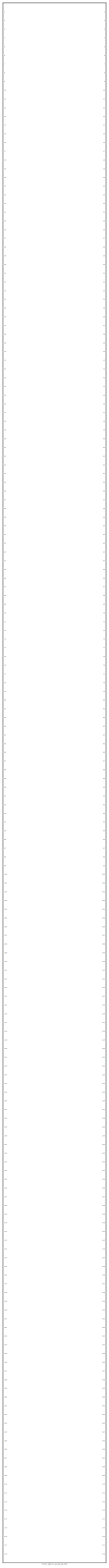
[diagram: root canvas - part 1/1, most of the canvas]
MODEL mcm_sil_M17_52_00_03_std
KIND library
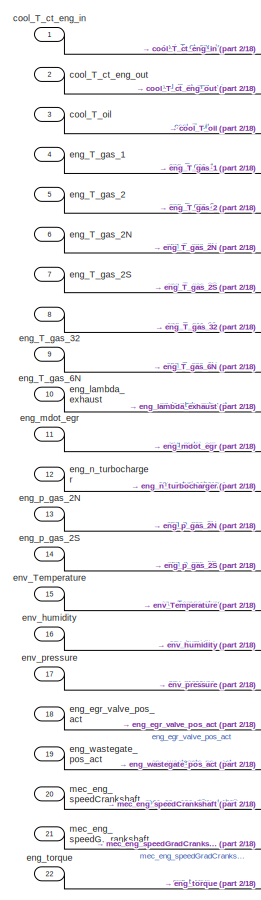
[diagram: mcm_sil_M17_52_00_03_std - part 1/18, top left region]
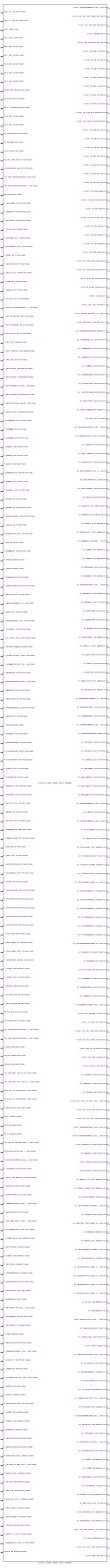
[diagram: mcm_sil_M17_52_00_03_std - part 2/18, center side, full height]
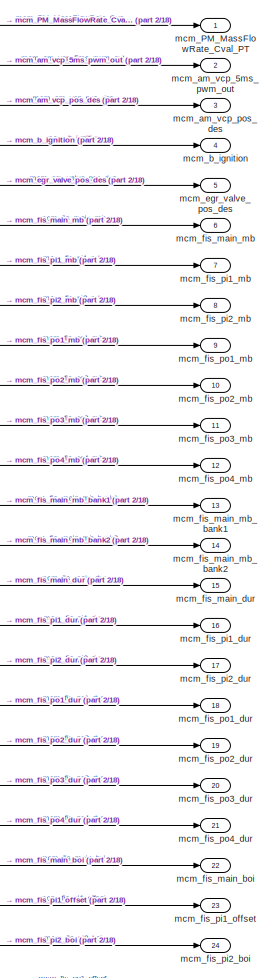
[diagram: mcm_sil_M17_52_00_03_std - part 3/18, top right region]
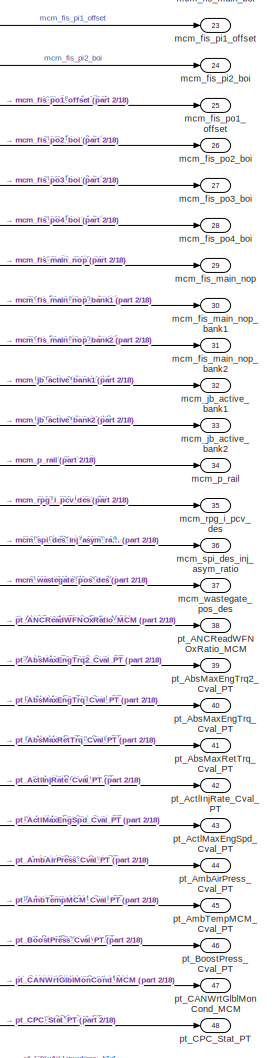
[diagram: mcm_sil_M17_52_00_03_std - part 4/18, top right region]
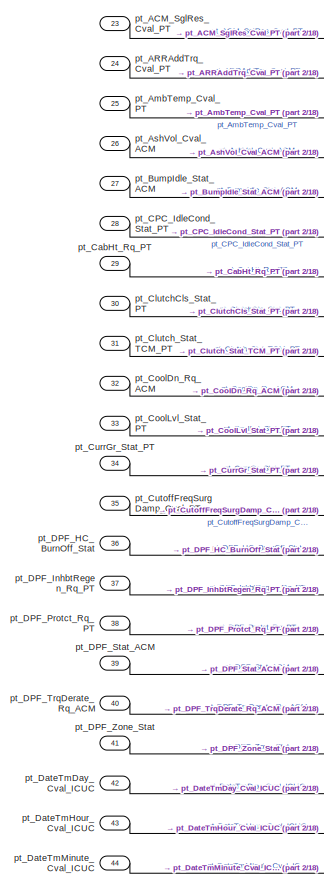
[diagram: mcm_sil_M17_52_00_03_std - part 5/18, top left region]
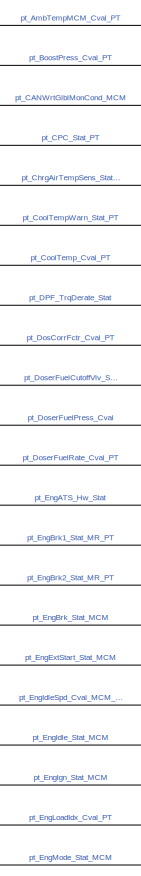
[diagram: mcm_sil_M17_52_00_03_std - part 6/18, top right region]
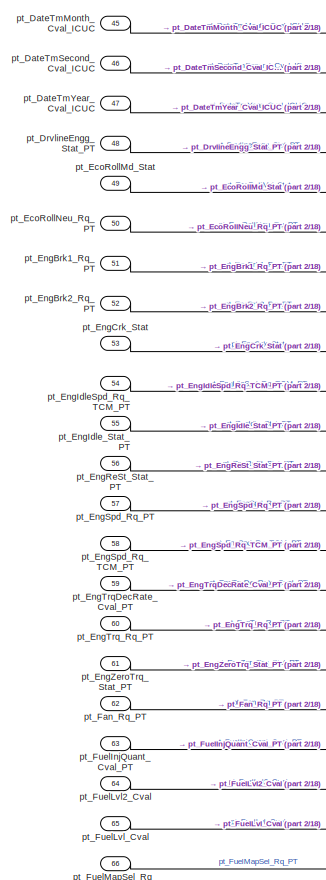
[diagram: mcm_sil_M17_52_00_03_std - part 7/18, top left region]
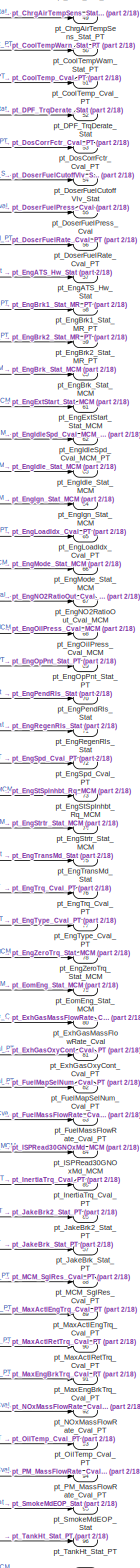
[diagram: mcm_sil_M17_52_00_03_std - part 8/18, middle right region]
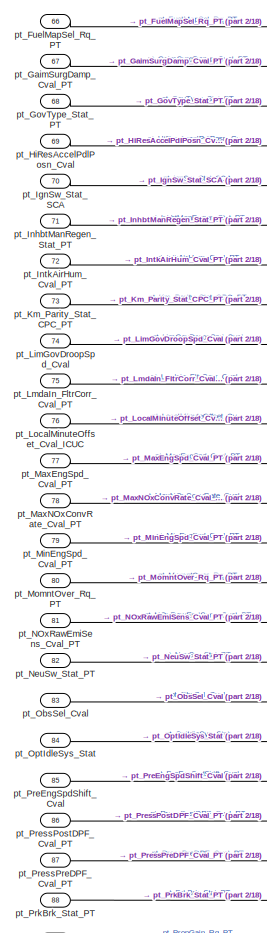
[diagram: mcm_sil_M17_52_00_03_std - part 9/18, middle left region]
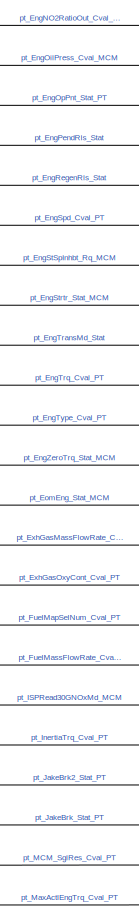
[diagram: mcm_sil_M17_52_00_03_std - part 10/18, middle right region]
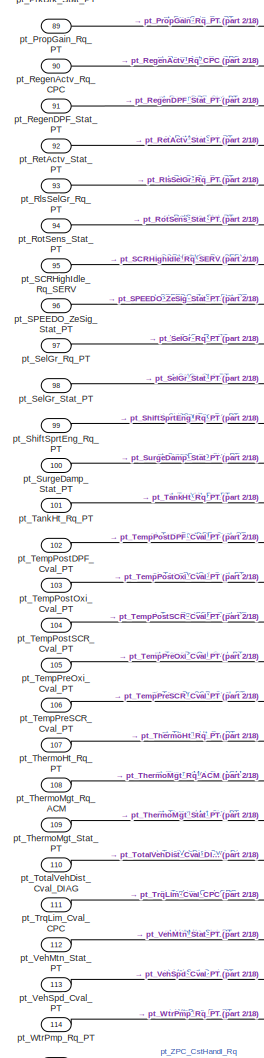
[diagram: mcm_sil_M17_52_00_03_std - part 11/18, middle left region]
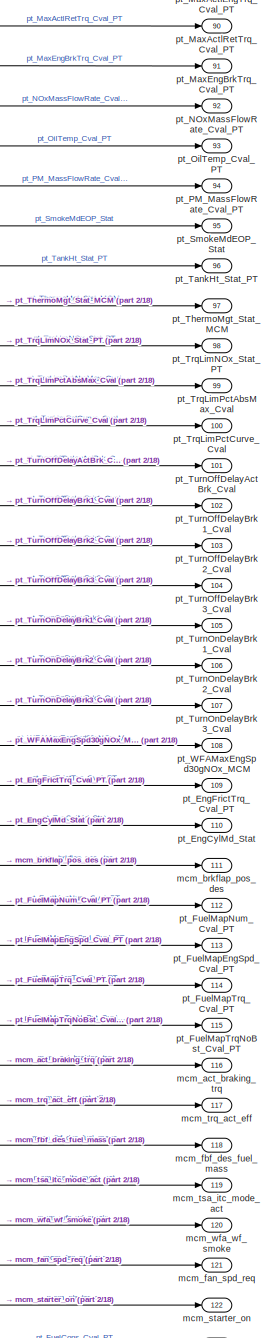
[diagram: mcm_sil_M17_52_00_03_std - part 12/18, middle right region]
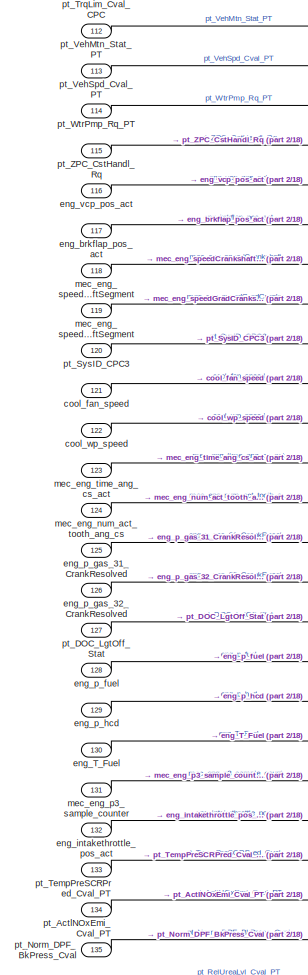
[diagram: mcm_sil_M17_52_00_03_std - part 13/18, bottom left region]
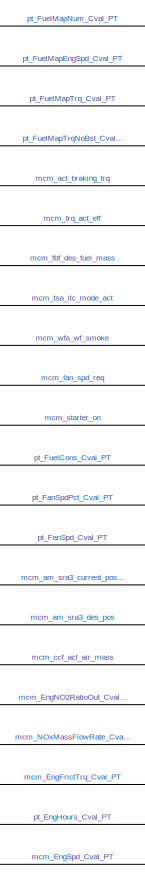
[diagram: mcm_sil_M17_52_00_03_std - part 14/18, bottom right region]
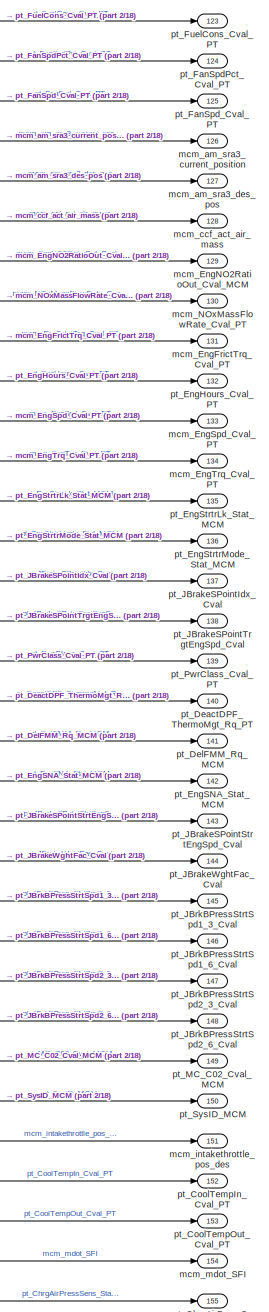
[diagram: mcm_sil_M17_52_00_03_std - part 15/18, bottom right region]
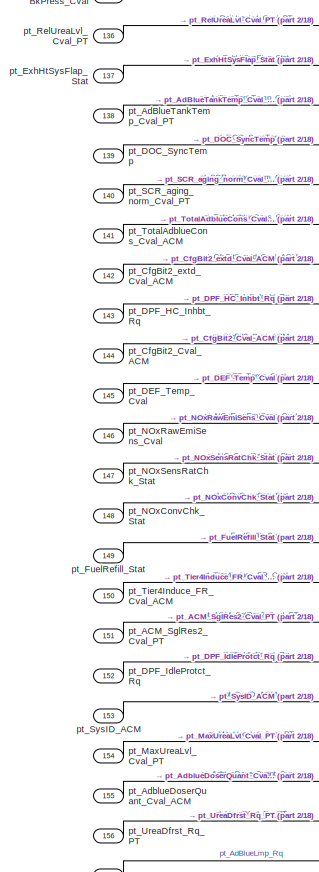
[diagram: mcm_sil_M17_52_00_03_std - part 16/18, bottom left region]
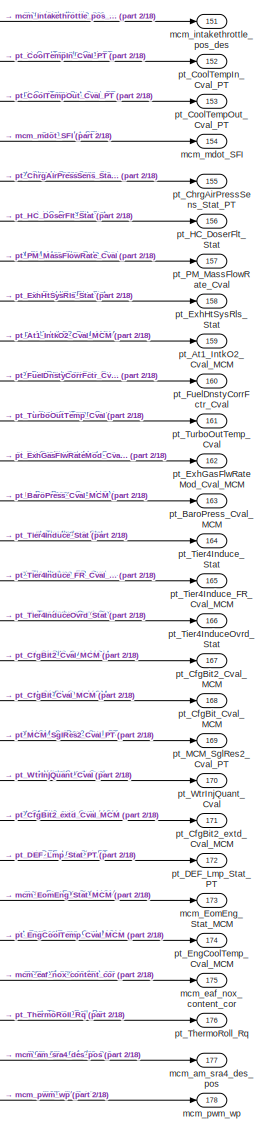
[diagram: mcm_sil_M17_52_00_03_std - part 17/18, bottom right region]
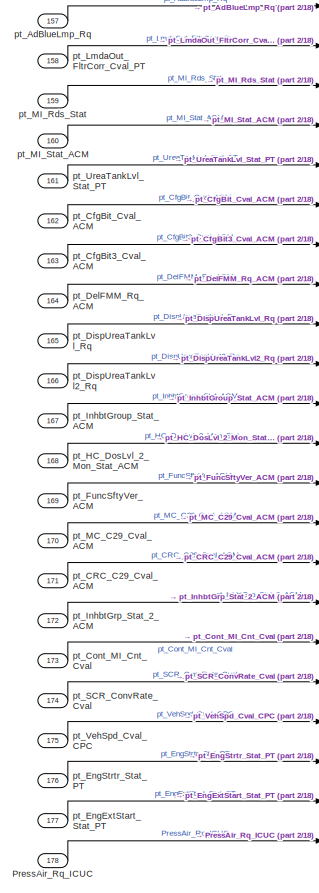
[diagram: mcm_sil_M17_52_00_03_std - part 18/18, bottom left region]
BLOCK [SubSystem] mcm_sil_M17_52_00_03_std
  Ports = [178, 178]
  RequestExecContextInheritance = off
  SID = 1
BLOCK [Reference] mcm_sil_M17_52_00_03_std/MCM21_MDEG_EURO_10ms_wrapper  REF=MCM21_MDEG_EURO_10ms_wrapper/MCM21_MDEG_EURO_10ms_wrapper
  FunctionWithSeparateData = off
  GeneratePreprocessorConditionals = off
  Ports = [178, 178]
  SID = 4
  ShowPortLabels = FromPortIcon
  SourceBlock = MCM21_MDEG_EURO_10ms_wrapper/MCM21_MDEG_EURO_10ms_wrapper
  SystemSampleTime = -1
BLOCK [Inport] mcm_sil_M17_52_00_03_std/PressAir_Rq_ICUC
  IconDisplay = Port number
  Port = 178
  SID = 182
BLOCK [Inport] mcm_sil_M17_52_00_03_std/cool_T_ct_eng_in
  IconDisplay = Port number
  SID = 5
BLOCK [Inport] mcm_sil_M17_52_00_03_std/cool_T_ct_eng_out
  IconDisplay = Port number
  Port = 2
  SID = 6
BLOCK [Inport] mcm_sil_M17_52_00_03_std/cool_T_oil
  IconDisplay = Port number
  Port = 3
  SID = 7
BLOCK [Inport] mcm_sil_M17_52_00_03_std/cool_fan_speed
  IconDisplay = Port number
  Port = 121
  SID = 125
BLOCK [Inport] mcm_sil_M17_52_00_03_std/cool_wp_speed
  IconDisplay = Port number
  Port = 122
  SID = 126
BLOCK [Inport] mcm_sil_M17_52_00_03_std/eng_T_Fuel
  IconDisplay = Port number
  Port = 130
  SID = 134
BLOCK [Inport] mcm_sil_M17_52_00_03_std/eng_T_gas_1
  IconDisplay = Port number
  Port = 4
  SID = 8
BLOCK [Inport] mcm_sil_M17_52_00_03_std/eng_T_gas_2
  IconDisplay = Port number
  Port = 5
  SID = 9
BLOCK [Inport] mcm_sil_M17_52_00_03_std/eng_T_gas_2N
  IconDisplay = Port number
  Port = 6
  SID = 10
BLOCK [Inport] mcm_sil_M17_52_00_03_std/eng_T_gas_2S
  IconDisplay = Port number
  Port = 7
  SID = 11
BLOCK [Inport] mcm_sil_M17_52_00_03_std/eng_T_gas_32
  IconDisplay = Port number
  Port = 8
  SID = 12
BLOCK [Inport] mcm_sil_M17_52_00_03_std/eng_T_gas_6N
  IconDisplay = Port number
  Port = 9
  SID = 13
BLOCK [Inport] mcm_sil_M17_52_00_03_std/eng_brkflap_pos_act
  IconDisplay = Port number
  Port = 117
  SID = 121
BLOCK [Inport] mcm_sil_M17_52_00_03_std/eng_egr_valve_pos_act
  IconDisplay = Port number
  Port = 18
  SID = 22
BLOCK [Inport] mcm_sil_M17_52_00_03_std/eng_intakethrottle_pos_act
  IconDisplay = Port number
  Port = 132
  SID = 136
BLOCK [Inport] mcm_sil_M17_52_00_03_std/eng_lambda_exhaust
  IconDisplay = Port number
  Port = 10
  SID = 14
BLOCK [Inport] mcm_sil_M17_52_00_03_std/eng_mdot_egr
  IconDisplay = Port number
  Port = 11
  SID = 15
BLOCK [Inport] mcm_sil_M17_52_00_03_std/eng_n_turbocharger
  IconDisplay = Port number
  Port = 12
  SID = 16
BLOCK [Inport] mcm_sil_M17_52_00_03_std/eng_p_fuel
  IconDisplay = Port number
  Port = 128
  SID = 132
BLOCK [Inport] mcm_sil_M17_52_00_03_std/eng_p_gas_2N
  IconDisplay = Port number
  Port = 13
  SID = 17
BLOCK [Inport] mcm_sil_M17_52_00_03_std/eng_p_gas_2S
  IconDisplay = Port number
  Port = 14
  SID = 18
BLOCK [Inport] mcm_sil_M17_52_00_03_std/eng_p_gas_31_CrankResolved
  IconDisplay = Port number
  Port = 125
  SID = 129
BLOCK [Inport] mcm_sil_M17_52_00_03_std/eng_p_gas_32_CrankResolved
  IconDisplay = Port number
  Port = 126
  SID = 130
BLOCK [Inport] mcm_sil_M17_52_00_03_std/eng_p_hcd
  IconDisplay = Port number
  Port = 129
  SID = 133
BLOCK [Inport] mcm_sil_M17_52_00_03_std/eng_torque
  IconDisplay = Port number
  Port = 22
  SID = 26
BLOCK [Inport] mcm_sil_M17_52_00_03_std/eng_vcp_pos_act
  IconDisplay = Port number
  Port = 116
  SID = 120
BLOCK [Inport] mcm_sil_M17_52_00_03_std/eng_wastegate_pos_act
  IconDisplay = Port number
  Port = 19
  SID = 23
BLOCK [Inport] mcm_sil_M17_52_00_03_std/env_Temperature
  IconDisplay = Port number
  Port = 15
  SID = 19
BLOCK [Inport] mcm_sil_M17_52_00_03_std/env_humidity
  IconDisplay = Port number
  Port = 16
  SID = 20
BLOCK [Inport] mcm_sil_M17_52_00_03_std/env_pressure
  IconDisplay = Port number
  Port = 17
  SID = 21
BLOCK [Outport] mcm_sil_M17_52_00_03_std/mcm_EngFrictTrq_Cval_PT
  IconDisplay = Port number
  Port = 131
  SID = 313
BLOCK [Outport] mcm_sil_M17_52_00_03_std/mcm_EngNO2RatioOut_Cval_MCM
  IconDisplay = Port number
  Port = 129
  SID = 311
BLOCK [Outport] mcm_sil_M17_52_00_03_std/mcm_EngSpd_Cval_PT
  IconDisplay = Port number
  Port = 133
  SID = 315
BLOCK [Outport] mcm_sil_M17_52_00_03_std/mcm_EngTrq_Cval_PT
  IconDisplay = Port number
  Port = 134
  SID = 316
BLOCK [Outport] mcm_sil_M17_52_00_03_std/mcm_EomEng_Stat_MCM
  IconDisplay = Port number
  Port = 173
  SID = 355
BLOCK [Outport] mcm_sil_M17_52_00_03_std/mcm_NOxMassFlowRate_Cval_PT
  IconDisplay = Port number
  Port = 130
  SID = 312
BLOCK [Outport] mcm_sil_M17_52_00_03_std/mcm_PM_MassFlowRate_Cval_PT
  IconDisplay = Port number
  SID = 183
BLOCK [Outport] mcm_sil_M17_52_00_03_std/mcm_act_braking_trq
  IconDisplay = Port number
  Port = 116
  SID = 298
BLOCK [Outport] mcm_sil_M17_52_00_03_std/mcm_am_sra3_current_position
  IconDisplay = Port number
  Port = 126
  SID = 308
BLOCK [Outport] mcm_sil_M17_52_00_03_std/mcm_am_sra3_des_pos
  IconDisplay = Port number
  Port = 127
  SID = 309
BLOCK [Outport] mcm_sil_M17_52_00_03_std/mcm_am_sra4_des_pos
  IconDisplay = Port number
  Port = 177
  SID = 359
BLOCK [Outport] mcm_sil_M17_52_00_03_std/mcm_am_vcp_5ms_pwm_out
  IconDisplay = Port number
  Port = 2
  SID = 184
BLOCK [Outport] mcm_sil_M17_52_00_03_std/mcm_am_vcp_pos_des
  IconDisplay = Port number
  Port = 3
  SID = 185
BLOCK [Outport] mcm_sil_M17_52_00_03_std/mcm_b_ignition
  IconDisplay = Port number
  Port = 4
  SID = 186
BLOCK [Outport] mcm_sil_M17_52_00_03_std/mcm_brkflap_pos_des
  IconDisplay = Port number
  Port = 111
  SID = 293
BLOCK [Outport] mcm_sil_M17_52_00_03_std/mcm_ccf_act_air_mass
  IconDisplay = Port number
  Port = 128
  SID = 310
BLOCK [Outport] mcm_sil_M17_52_00_03_std/mcm_eaf_nox_content_cor
  IconDisplay = Port number
  Port = 175
  SID = 357
BLOCK [Outport] mcm_sil_M17_52_00_03_std/mcm_egr_valve_pos_des
  IconDisplay = Port number
  Port = 5
  SID = 187
BLOCK [Outport] mcm_sil_M17_52_00_03_std/mcm_fan_spd_req
  IconDisplay = Port number
  Port = 121
  SID = 303
BLOCK [Outport] mcm_sil_M17_52_00_03_std/mcm_fbf_des_fuel_mass
  IconDisplay = Port number
  Port = 118
  SID = 300
BLOCK [Outport] mcm_sil_M17_52_00_03_std/mcm_fis_main_boi
  IconDisplay = Port number
  Port = 22
  SID = 204
BLOCK [Outport] mcm_sil_M17_52_00_03_std/mcm_fis_main_dur
  IconDisplay = Port number
  Port = 15
  SID = 197
BLOCK [Outport] mcm_sil_M17_52_00_03_std/mcm_fis_main_mb
  IconDisplay = Port number
  Port = 6
  SID = 188
BLOCK [Outport] mcm_sil_M17_52_00_03_std/mcm_fis_main_mb_bank1
  IconDisplay = Port number
  Port = 13
  SID = 195
BLOCK [Outport] mcm_sil_M17_52_00_03_std/mcm_fis_main_mb_bank2
  IconDisplay = Port number
  Port = 14
  SID = 196
BLOCK [Outport] mcm_sil_M17_52_00_03_std/mcm_fis_main_nop
  IconDisplay = Port number
  Port = 29
  SID = 211
BLOCK [Outport] mcm_sil_M17_52_00_03_std/mcm_fis_main_nop_bank1
  IconDisplay = Port number
  Port = 30
  SID = 212
BLOCK [Outport] mcm_sil_M17_52_00_03_std/mcm_fis_main_nop_bank2
  IconDisplay = Port number
  Port = 31
  SID = 213
BLOCK [Outport] mcm_sil_M17_52_00_03_std/mcm_fis_pi1_dur
  IconDisplay = Port number
  Port = 16
  SID = 198
BLOCK [Outport] mcm_sil_M17_52_00_03_std/mcm_fis_pi1_mb
  IconDisplay = Port number
  Port = 7
  SID = 189
BLOCK [Outport] mcm_sil_M17_52_00_03_std/mcm_fis_pi1_offset
  IconDisplay = Port number
  Port = 23
  SID = 205
BLOCK [Outport] mcm_sil_M17_52_00_03_std/mcm_fis_pi2_boi
  IconDisplay = Port number
  Port = 24
  SID = 206
BLOCK [Outport] mcm_sil_M17_52_00_03_std/mcm_fis_pi2_dur
  IconDisplay = Port number
  Port = 17
  SID = 199
BLOCK [Outport] mcm_sil_M17_52_00_03_std/mcm_fis_pi2_mb
  IconDisplay = Port number
  Port = 8
  SID = 190
BLOCK [Outport] mcm_sil_M17_52_00_03_std/mcm_fis_po1_dur
  IconDisplay = Port number
  Port = 18
  SID = 200
BLOCK [Outport] mcm_sil_M17_52_00_03_std/mcm_fis_po1_mb
  IconDisplay = Port number
  Port = 9
  SID = 191
BLOCK [Outport] mcm_sil_M17_52_00_03_std/mcm_fis_po1_offset
  IconDisplay = Port number
  Port = 25
  SID = 207
BLOCK [Outport] mcm_sil_M17_52_00_03_std/mcm_fis_po2_boi
  IconDisplay = Port number
  Port = 26
  SID = 208
BLOCK [Outport] mcm_sil_M17_52_00_03_std/mcm_fis_po2_dur
  IconDisplay = Port number
  Port = 19
  SID = 201
BLOCK [Outport] mcm_sil_M17_52_00_03_std/mcm_fis_po2_mb
  IconDisplay = Port number
  Port = 10
  SID = 192
BLOCK [Outport] mcm_sil_M17_52_00_03_std/mcm_fis_po3_boi
  IconDisplay = Port number
  Port = 27
  SID = 209
BLOCK [Outport] mcm_sil_M17_52_00_03_std/mcm_fis_po3_dur
  IconDisplay = Port number
  Port = 20
  SID = 202
BLOCK [Outport] mcm_sil_M17_52_00_03_std/mcm_fis_po3_mb
  IconDisplay = Port number
  Port = 11
  SID = 193
BLOCK [Outport] mcm_sil_M17_52_00_03_std/mcm_fis_po4_boi
  IconDisplay = Port number
  Port = 28
  SID = 210
BLOCK [Outport] mcm_sil_M17_52_00_03_std/mcm_fis_po4_dur
  IconDisplay = Port number
  Port = 21
  SID = 203
BLOCK [Outport] mcm_sil_M17_52_00_03_std/mcm_fis_po4_mb
  IconDisplay = Port number
  Port = 12
  SID = 194
BLOCK [Outport] mcm_sil_M17_52_00_03_std/mcm_intakethrottle_pos_des
  IconDisplay = Port number
  Port = 151
  SID = 333
BLOCK [Outport] mcm_sil_M17_52_00_03_std/mcm_jb_active_bank1
  IconDisplay = Port number
  Port = 32
  SID = 214
BLOCK [Outport] mcm_sil_M17_52_00_03_std/mcm_jb_active_bank2
  IconDisplay = Port number
  Port = 33
  SID = 215
BLOCK [Outport] mcm_sil_M17_52_00_03_std/mcm_mdot_SFI
  IconDisplay = Port number
  Port = 154
  SID = 336
BLOCK [Outport] mcm_sil_M17_52_00_03_std/mcm_p_rail
  IconDisplay = Port number
  Port = 34
  SID = 216
BLOCK [Outport] mcm_sil_M17_52_00_03_std/mcm_pwm_wp
  IconDisplay = Port number
  Port = 178
  SID = 360
BLOCK [Outport] mcm_sil_M17_52_00_03_std/mcm_rpg_i_pcv_des
  IconDisplay = Port number
  Port = 35
  SID = 217
BLOCK [Outport] mcm_sil_M17_52_00_03_std/mcm_spi_des_inj_asym_ratio
  IconDisplay = Port number
  Port = 36
  SID = 218
BLOCK [Outport] mcm_sil_M17_52_00_03_std/mcm_starter_on
  IconDisplay = Port number
  Port = 122
  SID = 304
BLOCK [Outport] mcm_sil_M17_52_00_03_std/mcm_trq_act_eff
  IconDisplay = Port number
  Port = 117
  SID = 299
BLOCK [Outport] mcm_sil_M17_52_00_03_std/mcm_tsa_itc_mode_act
  IconDisplay = Port number
  Port = 119
  SID = 301
BLOCK [Outport] mcm_sil_M17_52_00_03_std/mcm_wastegate_pos_des
  IconDisplay = Port number
  Port = 37
  SID = 219
BLOCK [Outport] mcm_sil_M17_52_00_03_std/mcm_wfa_wf_smoke
  IconDisplay = Port number
  Port = 120
  SID = 302
BLOCK [Inport] mcm_sil_M17_52_00_03_std/mec_eng_num_act_tooth_ang_cs
  IconDisplay = Port number
  Port = 124
  SID = 128
BLOCK [Inport] mcm_sil_M17_52_00_03_std/mec_eng_p3_sample_counter
  IconDisplay = Port number
  Port = 131
  SID = 135
BLOCK [Inport] mcm_sil_M17_52_00_03_std/mec_eng_speedCrankshaft
  IconDisplay = Port number
  Port = 20
  SID = 24
BLOCK [Inport] mcm_sil_M17_52_00_03_std/mec_eng_speedCrankshaftSegment
  IconDisplay = Port number
  Port = 118
  SID = 122
BLOCK [Inport] mcm_sil_M17_52_00_03_std/mec_eng_speedGradCrankshaft
  IconDisplay = Port number
  Port = 21
  SID = 25
BLOCK [Inport] mcm_sil_M17_52_00_03_std/mec_eng_speedGradCrankshaftSegment
  IconDisplay = Port number
  Port = 119
  SID = 123
BLOCK [Inport] mcm_sil_M17_52_00_03_std/mec_eng_time_ang_cs_act
  IconDisplay = Port number
  Port = 123
  SID = 127
BLOCK [Inport] mcm_sil_M17_52_00_03_std/pt_ACM_SglRes2_Cval_PT
  IconDisplay = Port number
  Port = 151
  SID = 155
BLOCK [Inport] mcm_sil_M17_52_00_03_std/pt_ACM_SglRes_Cval_PT
  IconDisplay = Port number
  Port = 23
  SID = 27
BLOCK [Outport] mcm_sil_M17_52_00_03_std/pt_ANCReadWFNOxRatio_MCM
  IconDisplay = Port number
  Port = 38
  SID = 220
BLOCK [Inport] mcm_sil_M17_52_00_03_std/pt_ARRAddTrq_Cval_PT
  IconDisplay = Port number
  Port = 24
  SID = 28
BLOCK [Outport] mcm_sil_M17_52_00_03_std/pt_AbsMaxEngTrq2_Cval_PT
  IconDisplay = Port number
  Port = 39
  SID = 221
BLOCK [Outport] mcm_sil_M17_52_00_03_std/pt_AbsMaxEngTrq_Cval_PT
  IconDisplay = Port number
  Port = 40
  SID = 222
BLOCK [Outport] mcm_sil_M17_52_00_03_std/pt_AbsMaxRetTrq_Cval_PT
  IconDisplay = Port number
  Port = 41
  SID = 223
BLOCK [Outport] mcm_sil_M17_52_00_03_std/pt_ActlInjRate_Cval_PT
  IconDisplay = Port number
  Port = 42
  SID = 224
BLOCK [Outport] mcm_sil_M17_52_00_03_std/pt_ActlMaxEngSpd_Cval_PT
  IconDisplay = Port number
  Port = 43
  SID = 225
BLOCK [Inport] mcm_sil_M17_52_00_03_std/pt_ActlNOxEmi_Cval_PT
  IconDisplay = Port number
  Port = 134
  SID = 138
BLOCK [Inport] mcm_sil_M17_52_00_03_std/pt_AdBlueLmp_Rq
  IconDisplay = Port number
  Port = 157
  SID = 161
BLOCK [Inport] mcm_sil_M17_52_00_03_std/pt_AdBlueTankTemp_Cval_PT
  IconDisplay = Port number
  Port = 138
  SID = 142
BLOCK [Inport] mcm_sil_M17_52_00_03_std/pt_AdblueDoserQuant_Cval_ACM
  IconDisplay = Port number
  Port = 155
  SID = 159
BLOCK [Outport] mcm_sil_M17_52_00_03_std/pt_AmbAirPress_Cval_PT
  IconDisplay = Port number
  Port = 44
  SID = 226
BLOCK [Outport] mcm_sil_M17_52_00_03_std/pt_AmbTempMCM_Cval_PT
  IconDisplay = Port number
  Port = 45
  SID = 227
BLOCK [Inport] mcm_sil_M17_52_00_03_std/pt_AmbTemp_Cval_PT
  IconDisplay = Port number
  Port = 25
  SID = 29
BLOCK [Inport] mcm_sil_M17_52_00_03_std/pt_AshVol_Cval_ACM
  IconDisplay = Port number
  Port = 26
  SID = 30
BLOCK [Outport] mcm_sil_M17_52_00_03_std/pt_At1_IntkO2_Cval_MCM
  IconDisplay = Port number
  Port = 159
  SID = 341
BLOCK [Outport] mcm_sil_M17_52_00_03_std/pt_BaroPress_Cval_MCM
  IconDisplay = Port number
  Port = 163
  SID = 345
BLOCK [Outport] mcm_sil_M17_52_00_03_std/pt_BoostPress_Cval_PT
  IconDisplay = Port number
  Port = 46
  SID = 228
BLOCK [Inport] mcm_sil_M17_52_00_03_std/pt_BumpIdle_Stat_ACM
  IconDisplay = Port number
  Port = 27
  SID = 31
BLOCK [Outport] mcm_sil_M17_52_00_03_std/pt_CANWrtGlblMonCond_MCM
  IconDisplay = Port number
  Port = 47
  SID = 229
BLOCK [Inport] mcm_sil_M17_52_00_03_std/pt_CPC_IdleCond_Stat_PT
  IconDisplay = Port number
  Port = 28
  SID = 32
BLOCK [Outport] mcm_sil_M17_52_00_03_std/pt_CPC_Stat_PT
  IconDisplay = Port number
  Port = 48
  SID = 230
BLOCK [Inport] mcm_sil_M17_52_00_03_std/pt_CRC_C29_Cval_ACM
  IconDisplay = Port number
  Port = 171
  SID = 175
BLOCK [Inport] mcm_sil_M17_52_00_03_std/pt_CabHt_Rq_PT
  IconDisplay = Port number
  Port = 29
  SID = 33
BLOCK [Inport] mcm_sil_M17_52_00_03_std/pt_CfgBit2_Cval_ACM
  IconDisplay = Port number
  Port = 144
  SID = 148
BLOCK [Outport] mcm_sil_M17_52_00_03_std/pt_CfgBit2_Cval_MCM
  IconDisplay = Port number
  Port = 167
  SID = 349
BLOCK [Inport] mcm_sil_M17_52_00_03_std/pt_CfgBit2_extd_Cval_ACM
  IconDisplay = Port number
  Port = 142
  SID = 146
BLOCK [Outport] mcm_sil_M17_52_00_03_std/pt_CfgBit2_extd_Cval_MCM
  IconDisplay = Port number
  Port = 171
  SID = 353
BLOCK [Inport] mcm_sil_M17_52_00_03_std/pt_CfgBit3_Cval_ACM
  IconDisplay = Port number
  Port = 163
  SID = 167
BLOCK [Inport] mcm_sil_M17_52_00_03_std/pt_CfgBit_Cval_ACM
  IconDisplay = Port number
  Port = 162
  SID = 166
BLOCK [Outport] mcm_sil_M17_52_00_03_std/pt_CfgBit_Cval_MCM
  IconDisplay = Port number
  Port = 168
  SID = 350
BLOCK [Outport] mcm_sil_M17_52_00_03_std/pt_ChrgAirPressSens_Stat_PT
  IconDisplay = Port number
  Port = 155
  SID = 337
BLOCK [Outport] mcm_sil_M17_52_00_03_std/pt_ChrgAirTempSens_Stat_PT
  IconDisplay = Port number
  Port = 49
  SID = 231
BLOCK [Inport] mcm_sil_M17_52_00_03_std/pt_ClutchCls_Stat_PT
  IconDisplay = Port number
  Port = 30
  SID = 34
BLOCK [Inport] mcm_sil_M17_52_00_03_std/pt_Clutch_Stat_TCM_PT
  IconDisplay = Port number
  Port = 31
  SID = 35
BLOCK [Inport] mcm_sil_M17_52_00_03_std/pt_Cont_MI_Cnt_Cval
  IconDisplay = Port number
  Port = 173
  SID = 177
BLOCK [Inport] mcm_sil_M17_52_00_03_std/pt_CoolDn_Rq_ACM
  IconDisplay = Port number
  Port = 32
  SID = 36
BLOCK [Inport] mcm_sil_M17_52_00_03_std/pt_CoolLvl_Stat_PT
  IconDisplay = Port number
  Port = 33
  SID = 37
BLOCK [Outport] mcm_sil_M17_52_00_03_std/pt_CoolTempIn_Cval_PT
  IconDisplay = Port number
  Port = 152
  SID = 334
BLOCK [Outport] mcm_sil_M17_52_00_03_std/pt_CoolTempOut_Cval_PT
  IconDisplay = Port number
  Port = 153
  SID = 335
BLOCK [Outport] mcm_sil_M17_52_00_03_std/pt_CoolTempWarn_Stat_PT
  IconDisplay = Port number
  Port = 50
  SID = 232
BLOCK [Outport] mcm_sil_M17_52_00_03_std/pt_CoolTemp_Cval_PT
  IconDisplay = Port number
  Port = 51
  SID = 233
BLOCK [Inport] mcm_sil_M17_52_00_03_std/pt_CurrGr_Stat_PT
  IconDisplay = Port number
  Port = 34
  SID = 38
BLOCK [Inport] mcm_sil_M17_52_00_03_std/pt_CutoffFreqSurgDamp_Cval_PT
  IconDisplay = Port number
  Port = 35
  SID = 39
BLOCK [Outport] mcm_sil_M17_52_00_03_std/pt_DEF_Lmp_Stat_PT
  IconDisplay = Port number
  Port = 172
  SID = 354
BLOCK [Inport] mcm_sil_M17_52_00_03_std/pt_DEF_Temp_Cval
  IconDisplay = Port number
  Port = 145
  SID = 149
BLOCK [Inport] mcm_sil_M17_52_00_03_std/pt_DOC_LgtOff_Stat
  IconDisplay = Port number
  Port = 127
  SID = 131
BLOCK [Inport] mcm_sil_M17_52_00_03_std/pt_DOC_SyncTemp
  IconDisplay = Port number
  Port = 139
  SID = 143
BLOCK [Inport] mcm_sil_M17_52_00_03_std/pt_DPF_HC_BurnOff_Stat
  IconDisplay = Port number
  Port = 36
  SID = 40
BLOCK [Inport] mcm_sil_M17_52_00_03_std/pt_DPF_HC_Inhbt_Rq
  IconDisplay = Port number
  Port = 143
  SID = 147
BLOCK [Inport] mcm_sil_M17_52_00_03_std/pt_DPF_IdleProtct_Rq
  IconDisplay = Port number
  Port = 152
  SID = 156
BLOCK [Inport] mcm_sil_M17_52_00_03_std/pt_DPF_InhbtRegen_Rq_PT
  IconDisplay = Port number
  Port = 37
  SID = 41
BLOCK [Inport] mcm_sil_M17_52_00_03_std/pt_DPF_Protct_Rq_PT
  IconDisplay = Port number
  Port = 38
  SID = 42
BLOCK [Inport] mcm_sil_M17_52_00_03_std/pt_DPF_Stat_ACM
  IconDisplay = Port number
  Port = 39
  SID = 43
BLOCK [Inport] mcm_sil_M17_52_00_03_std/pt_DPF_TrqDerate_Rq_ACM
  IconDisplay = Port number
  Port = 40
  SID = 44
BLOCK [Outport] mcm_sil_M17_52_00_03_std/pt_DPF_TrqDerate_Stat
  IconDisplay = Port number
  Port = 52
  SID = 234
BLOCK [Inport] mcm_sil_M17_52_00_03_std/pt_DPF_Zone_Stat
  IconDisplay = Port number
  Port = 41
  SID = 45
BLOCK [Inport] mcm_sil_M17_52_00_03_std/pt_DateTmDay_Cval_ICUC
  IconDisplay = Port number
  Port = 42
  SID = 46
BLOCK [Inport] mcm_sil_M17_52_00_03_std/pt_DateTmHour_Cval_ICUC
  IconDisplay = Port number
  Port = 43
  SID = 47
BLOCK [Inport] mcm_sil_M17_52_00_03_std/pt_DateTmMinute_Cval_ICUC
  IconDisplay = Port number
  Port = 44
  SID = 48
BLOCK [Inport] mcm_sil_M17_52_00_03_std/pt_DateTmMonth_Cval_ICUC
  IconDisplay = Port number
  Port = 45
  SID = 49
BLOCK [Inport] mcm_sil_M17_52_00_03_std/pt_DateTmSecond_Cval_ICUC
  IconDisplay = Port number
  Port = 46
  SID = 50
BLOCK [Inport] mcm_sil_M17_52_00_03_std/pt_DateTmYear_Cval_ICUC
  IconDisplay = Port number
  Port = 47
  SID = 51
BLOCK [Outport] mcm_sil_M17_52_00_03_std/pt_DeactDPF_ThermoMgt_Rq_PT
  IconDisplay = Port number
  Port = 140
  SID = 322
BLOCK [Inport] mcm_sil_M17_52_00_03_std/pt_DelFMM_Rq_ACM
  IconDisplay = Port number
  Port = 164
  SID = 168
BLOCK [Outport] mcm_sil_M17_52_00_03_std/pt_DelFMM_Rq_MCM
  IconDisplay = Port number
  Port = 141
  SID = 323
BLOCK [Inport] mcm_sil_M17_52_00_03_std/pt_DispUreaTankLvl2_Rq
  IconDisplay = Port number
  Port = 166
  SID = 170
BLOCK [Inport] mcm_sil_M17_52_00_03_std/pt_DispUreaTankLvl_Rq
  IconDisplay = Port number
  Port = 165
  SID = 169
BLOCK [Outport] mcm_sil_M17_52_00_03_std/pt_DosCorrFctr_Cval_PT
  IconDisplay = Port number
  Port = 53
  SID = 235
BLOCK [Outport] mcm_sil_M17_52_00_03_std/pt_DoserFuelCutoffVlv_Stat
  IconDisplay = Port number
  Port = 54
  SID = 236
BLOCK [Outport] mcm_sil_M17_52_00_03_std/pt_DoserFuelPress_Cval
  IconDisplay = Port number
  Port = 55
  SID = 237
BLOCK [Outport] mcm_sil_M17_52_00_03_std/pt_DoserFuelRate_Cval_PT
  IconDisplay = Port number
  Port = 56
  SID = 238
BLOCK [Inport] mcm_sil_M17_52_00_03_std/pt_DrvlineEngg_Stat_PT
  IconDisplay = Port number
  Port = 48
  SID = 52
BLOCK [Inport] mcm_sil_M17_52_00_03_std/pt_EcoRollMd_Stat
  IconDisplay = Port number
  Port = 49
  SID = 53
BLOCK [Inport] mcm_sil_M17_52_00_03_std/pt_EcoRollNeu_Rq_PT
  IconDisplay = Port number
  Port = 50
  SID = 54
BLOCK [Outport] mcm_sil_M17_52_00_03_std/pt_EngATS_Hw_Stat
  IconDisplay = Port number
  Port = 57
  SID = 239
BLOCK [Inport] mcm_sil_M17_52_00_03_std/pt_EngBrk1_Rq_PT
  IconDisplay = Port number
  Port = 51
  SID = 55
BLOCK [Outport] mcm_sil_M17_52_00_03_std/pt_EngBrk1_Stat_MR_PT
  IconDisplay = Port number
  Port = 58
  SID = 240
BLOCK [Inport] mcm_sil_M17_52_00_03_std/pt_EngBrk2_Rq_PT
  IconDisplay = Port number
  Port = 52
  SID = 56
BLOCK [Outport] mcm_sil_M17_52_00_03_std/pt_EngBrk2_Stat_MR_PT
  IconDisplay = Port number
  Port = 59
  SID = 241
BLOCK [Outport] mcm_sil_M17_52_00_03_std/pt_EngBrk_Stat_MCM
  IconDisplay = Port number
  Port = 60
  SID = 242
BLOCK [Outport] mcm_sil_M17_52_00_03_std/pt_EngCoolTemp_Cval_MCM
  IconDisplay = Port number
  Port = 174
  SID = 356
BLOCK [Inport] mcm_sil_M17_52_00_03_std/pt_EngCrk_Stat
  IconDisplay = Port number
  Port = 53
  SID = 57
BLOCK [Outport] mcm_sil_M17_52_00_03_std/pt_EngCylMd_Stat
  IconDisplay = Port number
  Port = 110
  SID = 292
BLOCK [Outport] mcm_sil_M17_52_00_03_std/pt_EngExtStart_Stat_MCM
  IconDisplay = Port number
  Port = 61
  SID = 243
BLOCK [Inport] mcm_sil_M17_52_00_03_std/pt_EngExtStart_Stat_PT
  IconDisplay = Port number
  Port = 177
  SID = 181
BLOCK [Outport] mcm_sil_M17_52_00_03_std/pt_EngFrictTrq_Cval_PT
  IconDisplay = Port number
  Port = 109
  SID = 291
BLOCK [Outport] mcm_sil_M17_52_00_03_std/pt_EngHours_Cval_PT
  IconDisplay = Port number
  Port = 132
  SID = 314
BLOCK [Outport] mcm_sil_M17_52_00_03_std/pt_EngIdleSpd_Cval_MCM_PT
  IconDisplay = Port number
  Port = 62
  SID = 244
BLOCK [Inport] mcm_sil_M17_52_00_03_std/pt_EngIdleSpd_Rq_TCM_PT
  IconDisplay = Port number
  Port = 54
  SID = 58
BLOCK [Outport] mcm_sil_M17_52_00_03_std/pt_EngIdle_Stat_MCM
  IconDisplay = Port number
  Port = 63
  SID = 245
BLOCK [Inport] mcm_sil_M17_52_00_03_std/pt_EngIdle_Stat_PT
  IconDisplay = Port number
  Port = 55
  SID = 59
BLOCK [Outport] mcm_sil_M17_52_00_03_std/pt_EngIgn_Stat_MCM
  IconDisplay = Port number
  Port = 64
  SID = 246
BLOCK [Outport] mcm_sil_M17_52_00_03_std/pt_EngLoadIdx_Cval_PT
  IconDisplay = Port number
  Port = 65
  SID = 247
BLOCK [Outport] mcm_sil_M17_52_00_03_std/pt_EngMode_Stat_MCM
  IconDisplay = Port number
  Port = 66
  SID = 248
BLOCK [Outport] mcm_sil_M17_52_00_03_std/pt_EngNO2RatioOut_Cval_MCM
  IconDisplay = Port number
  Port = 67
  SID = 249
BLOCK [Outport] mcm_sil_M17_52_00_03_std/pt_EngOilPress_Cval_MCM
  IconDisplay = Port number
  Port = 68
  SID = 250
BLOCK [Outport] mcm_sil_M17_52_00_03_std/pt_EngOpPnt_Stat_PT
  IconDisplay = Port number
  Port = 69
  SID = 251
BLOCK [Outport] mcm_sil_M17_52_00_03_std/pt_EngPendRls_Stat
  IconDisplay = Port number
  Port = 70
  SID = 252
BLOCK [Inport] mcm_sil_M17_52_00_03_std/pt_EngReSt_Stat_PT
  IconDisplay = Port number
  Port = 56
  SID = 60
BLOCK [Outport] mcm_sil_M17_52_00_03_std/pt_EngRegenRls_Stat
  IconDisplay = Port number
  Port = 71
  SID = 253
BLOCK [Outport] mcm_sil_M17_52_00_03_std/pt_EngSNA_Stat_MCM
  IconDisplay = Port number
  Port = 142
  SID = 324
BLOCK [Outport] mcm_sil_M17_52_00_03_std/pt_EngSpd_Cval_PT
  IconDisplay = Port number
  Port = 72
  SID = 254
BLOCK [Inport] mcm_sil_M17_52_00_03_std/pt_EngSpd_Rq_PT
  IconDisplay = Port number
  Port = 57
  SID = 61
BLOCK [Inport] mcm_sil_M17_52_00_03_std/pt_EngSpd_Rq_TCM_PT
  IconDisplay = Port number
  Port = 58
  SID = 62
BLOCK [Outport] mcm_sil_M17_52_00_03_std/pt_EngStSpInhbt_Rq_MCM
  IconDisplay = Port number
  Port = 73
  SID = 255
BLOCK [Outport] mcm_sil_M17_52_00_03_std/pt_EngStrtrLk_Stat_MCM
  IconDisplay = Port number
  Port = 135
  SID = 317
BLOCK [Outport] mcm_sil_M17_52_00_03_std/pt_EngStrtrMode_Stat_MCM
  IconDisplay = Port number
  Port = 136
  SID = 318
BLOCK [Outport] mcm_sil_M17_52_00_03_std/pt_EngStrtr_Stat_MCM
  IconDisplay = Port number
  Port = 74
  SID = 256
BLOCK [Inport] mcm_sil_M17_52_00_03_std/pt_EngStrtr_Stat_PT
  IconDisplay = Port number
  Port = 176
  SID = 180
BLOCK [Outport] mcm_sil_M17_52_00_03_std/pt_EngTransMd_Stat
  IconDisplay = Port number
  Port = 75
  SID = 257
BLOCK [Inport] mcm_sil_M17_52_00_03_std/pt_EngTrqDecRate_Cval_PT
  IconDisplay = Port number
  Port = 59
  SID = 63
BLOCK [Outport] mcm_sil_M17_52_00_03_std/pt_EngTrq_Cval_PT
  IconDisplay = Port number
  Port = 76
  SID = 258
BLOCK [Inport] mcm_sil_M17_52_00_03_std/pt_EngTrq_Rq_PT
  IconDisplay = Port number
  Port = 60
  SID = 64
BLOCK [Outport] mcm_sil_M17_52_00_03_std/pt_EngType_Cval_PT
  IconDisplay = Port number
  Port = 77
  SID = 259
BLOCK [Outport] mcm_sil_M17_52_00_03_std/pt_EngZeroTrq_Stat_MCM
  IconDisplay = Port number
  Port = 78
  SID = 260
BLOCK [Inport] mcm_sil_M17_52_00_03_std/pt_EngZeroTrq_Stat_PT
  IconDisplay = Port number
  Port = 61
  SID = 65
BLOCK [Outport] mcm_sil_M17_52_00_03_std/pt_EomEng_Stat_MCM
  IconDisplay = Port number
  Port = 79
  SID = 261
BLOCK [Outport] mcm_sil_M17_52_00_03_std/pt_ExhGasFlwRateMod_Cval_MCM
  IconDisplay = Port number
  Port = 162
  SID = 344
BLOCK [Outport] mcm_sil_M17_52_00_03_std/pt_ExhGasMassFlowRate_Cval
  IconDisplay = Port number
  Port = 80
  SID = 262
BLOCK [Outport] mcm_sil_M17_52_00_03_std/pt_ExhGasOxyCont_Cval_PT
  IconDisplay = Port number
  Port = 81
  SID = 263
BLOCK [Inport] mcm_sil_M17_52_00_03_std/pt_ExhHtSysFlap_Stat
  IconDisplay = Port number
  Port = 137
  SID = 141
BLOCK [Outport] mcm_sil_M17_52_00_03_std/pt_ExhHtSysRls_Stat
  IconDisplay = Port number
  Port = 158
  SID = 340
BLOCK [Outport] mcm_sil_M17_52_00_03_std/pt_FanSpdPct_Cval_PT
  IconDisplay = Port number
  Port = 124
  SID = 306
BLOCK [Outport] mcm_sil_M17_52_00_03_std/pt_FanSpd_Cval_PT
  IconDisplay = Port number
  Port = 125
  SID = 307
BLOCK [Inport] mcm_sil_M17_52_00_03_std/pt_Fan_Rq_PT
  IconDisplay = Port number
  Port = 62
  SID = 66
BLOCK [Outport] mcm_sil_M17_52_00_03_std/pt_FuelCons_Cval_PT
  IconDisplay = Port number
  Port = 123
  SID = 305
BLOCK [Outport] mcm_sil_M17_52_00_03_std/pt_FuelDnstyCorrFctr_Cval
  IconDisplay = Port number
  Port = 160
  SID = 342
BLOCK [Inport] mcm_sil_M17_52_00_03_std/pt_FuelInjQuant_Cval_PT
  IconDisplay = Port number
  Port = 63
  SID = 67
BLOCK [Inport] mcm_sil_M17_52_00_03_std/pt_FuelLvl2_Cval
  IconDisplay = Port number
  Port = 64
  SID = 68
BLOCK [Inport] mcm_sil_M17_52_00_03_std/pt_FuelLvl_Cval
  IconDisplay = Port number
  Port = 65
  SID = 69
BLOCK [Outport] mcm_sil_M17_52_00_03_std/pt_FuelMapEngSpd_Cval_PT
  IconDisplay = Port number
  Port = 113
  SID = 295
BLOCK [Outport] mcm_sil_M17_52_00_03_std/pt_FuelMapNum_Cval_PT
  IconDisplay = Port number
  Port = 112
  SID = 294
BLOCK [Outport] mcm_sil_M17_52_00_03_std/pt_FuelMapSelNum_Cval_PT
  IconDisplay = Port number
  Port = 82
  SID = 264
BLOCK [Inport] mcm_sil_M17_52_00_03_std/pt_FuelMapSel_Rq_PT
  IconDisplay = Port number
  Port = 66
  SID = 70
BLOCK [Outport] mcm_sil_M17_52_00_03_std/pt_FuelMapTrqNoBst_Cval_PT
  IconDisplay = Port number
  Port = 115
  SID = 297
BLOCK [Outport] mcm_sil_M17_52_00_03_std/pt_FuelMapTrq_Cval_PT
  IconDisplay = Port number
  Port = 114
  SID = 296
BLOCK [Outport] mcm_sil_M17_52_00_03_std/pt_FuelMassFlowRate_Cval_PT
  IconDisplay = Port number
  Port = 83
  SID = 265
BLOCK [Inport] mcm_sil_M17_52_00_03_std/pt_FuelRefill_Stat
  IconDisplay = Port number
  Port = 149
  SID = 153
BLOCK [Inport] mcm_sil_M17_52_00_03_std/pt_FuncSftyVer_ACM
  IconDisplay = Port number
  Port = 169
  SID = 173
BLOCK [Inport] mcm_sil_M17_52_00_03_std/pt_GaimSurgDamp_Cval_PT
  IconDisplay = Port number
  Port = 67
  SID = 71
BLOCK [Inport] mcm_sil_M17_52_00_03_std/pt_GovType_Stat_PT
  IconDisplay = Port number
  Port = 68
  SID = 72
BLOCK [Inport] mcm_sil_M17_52_00_03_std/pt_HC_DosLvl_2_Mon_Stat_ACM
  IconDisplay = Port number
  Port = 168
  SID = 172
BLOCK [Outport] mcm_sil_M17_52_00_03_std/pt_HC_DoserFlt_Stat
  IconDisplay = Port number
  Port = 156
  SID = 338
BLOCK [Inport] mcm_sil_M17_52_00_03_std/pt_HiResAccelPdlPosn_Cval
  IconDisplay = Port number
  Port = 69
  SID = 73
BLOCK [Outport] mcm_sil_M17_52_00_03_std/pt_ISPRead30GNOxMd_MCM
  IconDisplay = Port number
  Port = 84
  SID = 266
BLOCK [Inport] mcm_sil_M17_52_00_03_std/pt_IgnSw_Stat_SCA
  IconDisplay = Port number
  Port = 70
  SID = 74
BLOCK [Outport] mcm_sil_M17_52_00_03_std/pt_InertiaTrq_Cval_PT
  IconDisplay = Port number
  Port = 85
  SID = 267
BLOCK [Inport] mcm_sil_M17_52_00_03_std/pt_InhbtGroup_Stat_ACM
  IconDisplay = Port number
  Port = 167
  SID = 171
BLOCK [Inport] mcm_sil_M17_52_00_03_std/pt_InhbtGrp_Stat_2_ACM
  IconDisplay = Port number
  Port = 172
  SID = 176
BLOCK [Inport] mcm_sil_M17_52_00_03_std/pt_InhbtManRegen_Stat_PT
  IconDisplay = Port number
  Port = 71
  SID = 75
BLOCK [Inport] mcm_sil_M17_52_00_03_std/pt_IntkAirHum_Cval_PT
  IconDisplay = Port number
  Port = 72
  SID = 76
BLOCK [Outport] mcm_sil_M17_52_00_03_std/pt_JBrakeSPointIdx_Cval
  IconDisplay = Port number
  Port = 137
  SID = 319
BLOCK [Outport] mcm_sil_M17_52_00_03_std/pt_JBrakeSPointStrtEngSpd_Cval
  IconDisplay = Port number
  Port = 143
  SID = 325
BLOCK [Outport] mcm_sil_M17_52_00_03_std/pt_JBrakeSPointTrgtEngSpd_Cval
  IconDisplay = Port number
  Port = 138
  SID = 320
BLOCK [Outport] mcm_sil_M17_52_00_03_std/pt_JBrakeWghtFac_Cval
  IconDisplay = Port number
  Port = 144
  SID = 326
BLOCK [Outport] mcm_sil_M17_52_00_03_std/pt_JBrkBPressStrtSpd1_3_Cval
  IconDisplay = Port number
  Port = 145
  SID = 327
BLOCK [Outport] mcm_sil_M17_52_00_03_std/pt_JBrkBPressStrtSpd1_6_Cval
  IconDisplay = Port number
  Port = 146
  SID = 328
BLOCK [Outport] mcm_sil_M17_52_00_03_std/pt_JBrkBPressStrtSpd2_3_Cval
  IconDisplay = Port number
  Port = 147
  SID = 329
BLOCK [Outport] mcm_sil_M17_52_00_03_std/pt_JBrkBPressStrtSpd2_6_Cval
  IconDisplay = Port number
  Port = 148
  SID = 330
BLOCK [Outport] mcm_sil_M17_52_00_03_std/pt_JakeBrk2_Stat_PT
  IconDisplay = Port number
  Port = 86
  SID = 268
BLOCK [Outport] mcm_sil_M17_52_00_03_std/pt_JakeBrk_Stat_PT
  IconDisplay = Port number
  Port = 87
  SID = 269
BLOCK [Inport] mcm_sil_M17_52_00_03_std/pt_Km_Parity_Stat_CPC_PT
  IconDisplay = Port number
  Port = 73
  SID = 77
BLOCK [Inport] mcm_sil_M17_52_00_03_std/pt_LimGovDroopSpd_Cval
  IconDisplay = Port number
  Port = 74
  SID = 78
BLOCK [Inport] mcm_sil_M17_52_00_03_std/pt_LmdaIn_FltrCorr_Cval_PT
  IconDisplay = Port number
  Port = 75
  SID = 79
BLOCK [Inport] mcm_sil_M17_52_00_03_std/pt_LmdaOut_FltrCorr_Cval_PT
  IconDisplay = Port number
  Port = 158
  SID = 162
BLOCK [Inport] mcm_sil_M17_52_00_03_std/pt_LocalMinuteOffset_Cval_ICUC
  IconDisplay = Port number
  Port = 76
  SID = 80
BLOCK [Outport] mcm_sil_M17_52_00_03_std/pt_MCM_SglRes2_Cval_PT
  IconDisplay = Port number
  Port = 169
  SID = 351
BLOCK [Outport] mcm_sil_M17_52_00_03_std/pt_MCM_SglRes_Cval_PT
  IconDisplay = Port number
  Port = 88
  SID = 270
BLOCK [Outport] mcm_sil_M17_52_00_03_std/pt_MC_C02_Cval_MCM
  IconDisplay = Port number
  Port = 149
  SID = 331
BLOCK [Inport] mcm_sil_M17_52_00_03_std/pt_MC_C29_Cval_ACM
  IconDisplay = Port number
  Port = 170
  SID = 174
BLOCK [Inport] mcm_sil_M17_52_00_03_std/pt_MI_Rds_Stat
  IconDisplay = Port number
  Port = 159
  SID = 163
BLOCK [Inport] mcm_sil_M17_52_00_03_std/pt_MI_Stat_ACM
  IconDisplay = Port number
  Port = 160
  SID = 164
BLOCK [Outport] mcm_sil_M17_52_00_03_std/pt_MaxActlEngTrq_Cval_PT
  IconDisplay = Port number
  Port = 89
  SID = 271
BLOCK [Outport] mcm_sil_M17_52_00_03_std/pt_MaxActlRetTrq_Cval_PT
  IconDisplay = Port number
  Port = 90
  SID = 272
BLOCK [Outport] mcm_sil_M17_52_00_03_std/pt_MaxEngBrkTrq_Cval_PT
  IconDisplay = Port number
  Port = 91
  SID = 273
BLOCK [Inport] mcm_sil_M17_52_00_03_std/pt_MaxEngSpd_Cval_PT
  IconDisplay = Port number
  Port = 77
  SID = 81
BLOCK [Inport] mcm_sil_M17_52_00_03_std/pt_MaxNOxConvRate_Cval_PT
  IconDisplay = Port number
  Port = 78
  SID = 82
BLOCK [Inport] mcm_sil_M17_52_00_03_std/pt_MaxUreaLvl_Cval_PT
  IconDisplay = Port number
  Port = 154
  SID = 158
BLOCK [Inport] mcm_sil_M17_52_00_03_std/pt_MinEngSpd_Cval_PT
  IconDisplay = Port number
  Port = 79
  SID = 83
BLOCK [Inport] mcm_sil_M17_52_00_03_std/pt_MomntOver_Rq_PT
  IconDisplay = Port number
  Port = 80
  SID = 84
BLOCK [Inport] mcm_sil_M17_52_00_03_std/pt_NOxConvChk_Stat
  IconDisplay = Port number
  Port = 148
  SID = 152
BLOCK [Outport] mcm_sil_M17_52_00_03_std/pt_NOxMassFlowRate_Cval_PT
  IconDisplay = Port number
  Port = 92
  SID = 274
BLOCK [Inport] mcm_sil_M17_52_00_03_std/pt_NOxRawEmiSens_Cval
  IconDisplay = Port number
  Port = 146
  SID = 150
BLOCK [Inport] mcm_sil_M17_52_00_03_std/pt_NOxRawEmiSens_Cval_PT
  IconDisplay = Port number
  Port = 81
  SID = 85
BLOCK [Inport] mcm_sil_M17_52_00_03_std/pt_NOxSensRatChk_Stat
  IconDisplay = Port number
  Port = 147
  SID = 151
BLOCK [Inport] mcm_sil_M17_52_00_03_std/pt_NeuSw_Stat_PT
  IconDisplay = Port number
  Port = 82
  SID = 86
BLOCK [Inport] mcm_sil_M17_52_00_03_std/pt_Norm_DPF_BkPress_Cval
  IconDisplay = Port number
  Port = 135
  SID = 139
BLOCK [Inport] mcm_sil_M17_52_00_03_std/pt_ObsSel_Cval
  IconDisplay = Port number
  Port = 83
  SID = 87
BLOCK [Outport] mcm_sil_M17_52_00_03_std/pt_OilTemp_Cval_PT
  IconDisplay = Port number
  Port = 93
  SID = 275
BLOCK [Inport] mcm_sil_M17_52_00_03_std/pt_OptIdleSys_Stat
  IconDisplay = Port number
  Port = 84
  SID = 88
BLOCK [Outport] mcm_sil_M17_52_00_03_std/pt_PM_MassFlowRate_Cval
  IconDisplay = Port number
  Port = 157
  SID = 339
BLOCK [Outport] mcm_sil_M17_52_00_03_std/pt_PM_MassFlowRate_Cval_PT
  IconDisplay = Port number
  Port = 94
  SID = 276
BLOCK [Inport] mcm_sil_M17_52_00_03_std/pt_PreEngSpdShift_Cval
  IconDisplay = Port number
  Port = 85
  SID = 89
BLOCK [Inport] mcm_sil_M17_52_00_03_std/pt_PressPostDPF_Cval_PT
  IconDisplay = Port number
  Port = 86
  SID = 90
BLOCK [Inport] mcm_sil_M17_52_00_03_std/pt_PressPreDPF_Cval_PT
  IconDisplay = Port number
  Port = 87
  SID = 91
BLOCK [Inport] mcm_sil_M17_52_00_03_std/pt_PrkBrk_Stat_PT
  IconDisplay = Port number
  Port = 88
  SID = 92
BLOCK [Inport] mcm_sil_M17_52_00_03_std/pt_PropGain_Rq_PT
  IconDisplay = Port number
  Port = 89
  SID = 93
BLOCK [Outport] mcm_sil_M17_52_00_03_std/pt_PwrClass_Cval_PT
  IconDisplay = Port number
  Port = 139
  SID = 321
BLOCK [Inport] mcm_sil_M17_52_00_03_std/pt_RegenActv_Rq_CPC
  IconDisplay = Port number
  Port = 90
  SID = 94
BLOCK [Inport] mcm_sil_M17_52_00_03_std/pt_RegenDPF_Stat_PT
  IconDisplay = Port number
  Port = 91
  SID = 95
BLOCK [Inport] mcm_sil_M17_52_00_03_std/pt_RelUreaLvl_Cval_PT
  IconDisplay = Port number
  Port = 136
  SID = 140
BLOCK [Inport] mcm_sil_M17_52_00_03_std/pt_RetActv_Stat_PT
  IconDisplay = Port number
  Port = 92
  SID = 96
BLOCK [Inport] mcm_sil_M17_52_00_03_std/pt_RlsSelGr_Rq_PT
  IconDisplay = Port number
  Port = 93
  SID = 97
BLOCK [Inport] mcm_sil_M17_52_00_03_std/pt_RotSens_Stat_PT
  IconDisplay = Port number
  Port = 94
  SID = 98
BLOCK [Inport] mcm_sil_M17_52_00_03_std/pt_SCRHighIdle_Rq_SERV
  IconDisplay = Port number
  Port = 95
  SID = 99
BLOCK [Inport] mcm_sil_M17_52_00_03_std/pt_SCR_ConvRate_Cval
  IconDisplay = Port number
  Port = 174
  SID = 178
BLOCK [Inport] mcm_sil_M17_52_00_03_std/pt_SCR_aging_norm_Cval_PT
  IconDisplay = Port number
  Port = 140
  SID = 144
BLOCK [Inport] mcm_sil_M17_52_00_03_std/pt_SPEEDO_ZeSig_Stat_PT
  IconDisplay = Port number
  Port = 96
  SID = 100
BLOCK [Inport] mcm_sil_M17_52_00_03_std/pt_SelGr_Rq_PT
  IconDisplay = Port number
  Port = 97
  SID = 101
BLOCK [Inport] mcm_sil_M17_52_00_03_std/pt_SelGr_Stat_PT
  IconDisplay = Port number
  Port = 98
  SID = 102
BLOCK [Inport] mcm_sil_M17_52_00_03_std/pt_ShiftSprtEng_Rq_PT
  IconDisplay = Port number
  Port = 99
  SID = 103
BLOCK [Outport] mcm_sil_M17_52_00_03_std/pt_SmokeMdEOP_Stat
  IconDisplay = Port number
  Port = 95
  SID = 277
BLOCK [Inport] mcm_sil_M17_52_00_03_std/pt_SurgeDamp_Stat_PT
  IconDisplay = Port number
  Port = 100
  SID = 104
BLOCK [Inport] mcm_sil_M17_52_00_03_std/pt_SysID_ACM
  IconDisplay = Port number
  Port = 153
  SID = 157
BLOCK [Inport] mcm_sil_M17_52_00_03_std/pt_SysID_CPC3
  IconDisplay = Port number
  Port = 120
  SID = 124
BLOCK [Outport] mcm_sil_M17_52_00_03_std/pt_SysID_MCM
  IconDisplay = Port number
  Port = 150
  SID = 332
BLOCK [Inport] mcm_sil_M17_52_00_03_std/pt_TankHt_Rq_PT
  IconDisplay = Port number
  Port = 101
  SID = 105
BLOCK [Outport] mcm_sil_M17_52_00_03_std/pt_TankHt_Stat_PT
  IconDisplay = Port number
  Port = 96
  SID = 278
BLOCK [Inport] mcm_sil_M17_52_00_03_std/pt_TempPostDPF_Cval_PT
  IconDisplay = Port number
  Port = 102
  SID = 106
BLOCK [Inport] mcm_sil_M17_52_00_03_std/pt_TempPostOxi_Cval_PT
  IconDisplay = Port number
  Port = 103
  SID = 107
BLOCK [Inport] mcm_sil_M17_52_00_03_std/pt_TempPostSCR_Cval_PT
  IconDisplay = Port number
  Port = 104
  SID = 108
BLOCK [Inport] mcm_sil_M17_52_00_03_std/pt_TempPreOxi_Cval_PT
  IconDisplay = Port number
  Port = 105
  SID = 109
BLOCK [Inport] mcm_sil_M17_52_00_03_std/pt_TempPreSCRPred_Cval_PT
  IconDisplay = Port number
  Port = 133
  SID = 137
BLOCK [Inport] mcm_sil_M17_52_00_03_std/pt_TempPreSCR_Cval_PT
  IconDisplay = Port number
  Port = 106
  SID = 110
BLOCK [Inport] mcm_sil_M17_52_00_03_std/pt_ThermoHt_Rq_PT
  IconDisplay = Port number
  Port = 107
  SID = 111
BLOCK [Inport] mcm_sil_M17_52_00_03_std/pt_ThermoMgt_Rq_ACM
  IconDisplay = Port number
  Port = 108
  SID = 112
BLOCK [Outport] mcm_sil_M17_52_00_03_std/pt_ThermoMgt_Stat_MCM
  IconDisplay = Port number
  Port = 97
  SID = 279
BLOCK [Inport] mcm_sil_M17_52_00_03_std/pt_ThermoMgt_Stat_PT
  IconDisplay = Port number
  Port = 109
  SID = 113
BLOCK [Outport] mcm_sil_M17_52_00_03_std/pt_ThermoRoll_Rq
  IconDisplay = Port number
  Port = 176
  SID = 358
BLOCK [Outport] mcm_sil_M17_52_00_03_std/pt_Tier4InduceOvrd_Stat
  IconDisplay = Port number
  Port = 166
  SID = 348
BLOCK [Inport] mcm_sil_M17_52_00_03_std/pt_Tier4Induce_FR_Cval_ACM
  IconDisplay = Port number
  Port = 150
  SID = 154
BLOCK [Outport] mcm_sil_M17_52_00_03_std/pt_Tier4Induce_FR_Cval_MCM
  IconDisplay = Port number
  Port = 165
  SID = 347
BLOCK [Outport] mcm_sil_M17_52_00_03_std/pt_Tier4Induce_Stat
  IconDisplay = Port number
  Port = 164
  SID = 346
BLOCK [Inport] mcm_sil_M17_52_00_03_std/pt_TotalAdblueCons_Cval_ACM
  IconDisplay = Port number
  Port = 141
  SID = 145
BLOCK [Inport] mcm_sil_M17_52_00_03_std/pt_TotalVehDist_Cval_DIAG
  IconDisplay = Port number
  Port = 110
  SID = 114
BLOCK [Outport] mcm_sil_M17_52_00_03_std/pt_TrqLimNOx_Stat_PT
  IconDisplay = Port number
  Port = 98
  SID = 280
BLOCK [Outport] mcm_sil_M17_52_00_03_std/pt_TrqLimPctAbsMax_Cval
  IconDisplay = Port number
  Port = 99
  SID = 281
BLOCK [Outport] mcm_sil_M17_52_00_03_std/pt_TrqLimPctCurve_Cval
  IconDisplay = Port number
  Port = 100
  SID = 282
BLOCK [Inport] mcm_sil_M17_52_00_03_std/pt_TrqLim_Cval_CPC
  IconDisplay = Port number
  Port = 111
  SID = 115
BLOCK [Outport] mcm_sil_M17_52_00_03_std/pt_TurboOutTemp_Cval
  IconDisplay = Port number
  Port = 161
  SID = 343
BLOCK [Outport] mcm_sil_M17_52_00_03_std/pt_TurnOffDelayActBrk_Cval
  IconDisplay = Port number
  Port = 101
  SID = 283
BLOCK [Outport] mcm_sil_M17_52_00_03_std/pt_TurnOffDelayBrk1_Cval
  IconDisplay = Port number
  Port = 102
  SID = 284
BLOCK [Outport] mcm_sil_M17_52_00_03_std/pt_TurnOffDelayBrk2_Cval
  IconDisplay = Port number
  Port = 103
  SID = 285
BLOCK [Outport] mcm_sil_M17_52_00_03_std/pt_TurnOffDelayBrk3_Cval
  IconDisplay = Port number
  Port = 104
  SID = 286
BLOCK [Outport] mcm_sil_M17_52_00_03_std/pt_TurnOnDelayBrk1_Cval
  IconDisplay = Port number
  Port = 105
  SID = 287
BLOCK [Outport] mcm_sil_M17_52_00_03_std/pt_TurnOnDelayBrk2_Cval
  IconDisplay = Port number
  Port = 106
  SID = 288
BLOCK [Outport] mcm_sil_M17_52_00_03_std/pt_TurnOnDelayBrk3_Cval
  IconDisplay = Port number
  Port = 107
  SID = 289
BLOCK [Inport] mcm_sil_M17_52_00_03_std/pt_UreaDfrst_Rq_PT
  IconDisplay = Port number
  Port = 156
  SID = 160
BLOCK [Inport] mcm_sil_M17_52_00_03_std/pt_UreaTankLvl_Stat_PT
  IconDisplay = Port number
  Port = 161
  SID = 165
BLOCK [Inport] mcm_sil_M17_52_00_03_std/pt_VehMtn_Stat_PT
  IconDisplay = Port number
  Port = 112
  SID = 116
BLOCK [Inport] mcm_sil_M17_52_00_03_std/pt_VehSpd_Cval_CPC
  IconDisplay = Port number
  Port = 175
  SID = 179
BLOCK [Inport] mcm_sil_M17_52_00_03_std/pt_VehSpd_Cval_PT
  IconDisplay = Port number
  Port = 113
  SID = 117
BLOCK [Outport] mcm_sil_M17_52_00_03_std/pt_WFAMaxEngSpd30gNOx_MCM
  IconDisplay = Port number
  Port = 108
  SID = 290
BLOCK [Outport] mcm_sil_M17_52_00_03_std/pt_WtrInjQuant_Cval
  IconDisplay = Port number
  Port = 170
  SID = 352
BLOCK [Inport] mcm_sil_M17_52_00_03_std/pt_WtrPmp_Rq_PT
  IconDisplay = Port number
  Port = 114
  SID = 118
BLOCK [Inport] mcm_sil_M17_52_00_03_std/pt_ZPC_CstHandl_Rq
  IconDisplay = Port number
  Port = 115
  SID = 119
LINE mcm_sil_M17_52_00_03_std/MCM21_MDEG_EURO_10ms_wrapper:1 -> mcm_sil_M17_52_00_03_std/mcm_PM_MassFlowRate_Cval_PT:1
LINE mcm_sil_M17_52_00_03_std/MCM21_MDEG_EURO_10ms_wrapper:10 -> mcm_sil_M17_52_00_03_std/mcm_fis_po2_mb:1
LINE mcm_sil_M17_52_00_03_std/MCM21_MDEG_EURO_10ms_wrapper:100 -> mcm_sil_M17_52_00_03_std/pt_TrqLimPctCurve_Cval:1
LINE mcm_sil_M17_52_00_03_std/MCM21_MDEG_EURO_10ms_wrapper:101 -> mcm_sil_M17_52_00_03_std/pt_TurnOffDelayActBrk_Cval:1
LINE mcm_sil_M17_52_00_03_std/MCM21_MDEG_EURO_10ms_wrapper:102 -> mcm_sil_M17_52_00_03_std/pt_TurnOffDelayBrk1_Cval:1
LINE mcm_sil_M17_52_00_03_std/MCM21_MDEG_EURO_10ms_wrapper:103 -> mcm_sil_M17_52_00_03_std/pt_TurnOffDelayBrk2_Cval:1
LINE mcm_sil_M17_52_00_03_std/MCM21_MDEG_EURO_10ms_wrapper:104 -> mcm_sil_M17_52_00_03_std/pt_TurnOffDelayBrk3_Cval:1
LINE mcm_sil_M17_52_00_03_std/MCM21_MDEG_EURO_10ms_wrapper:105 -> mcm_sil_M17_52_00_03_std/pt_TurnOnDelayBrk1_Cval:1
LINE mcm_sil_M17_52_00_03_std/MCM21_MDEG_EURO_10ms_wrapper:106 -> mcm_sil_M17_52_00_03_std/pt_TurnOnDelayBrk2_Cval:1
LINE mcm_sil_M17_52_00_03_std/MCM21_MDEG_EURO_10ms_wrapper:107 -> mcm_sil_M17_52_00_03_std/pt_TurnOnDelayBrk3_Cval:1
LINE mcm_sil_M17_52_00_03_std/MCM21_MDEG_EURO_10ms_wrapper:108 -> mcm_sil_M17_52_00_03_std/pt_WFAMaxEngSpd30gNOx_MCM:1
LINE mcm_sil_M17_52_00_03_std/MCM21_MDEG_EURO_10ms_wrapper:109 -> mcm_sil_M17_52_00_03_std/pt_EngFrictTrq_Cval_PT:1
LINE mcm_sil_M17_52_00_03_std/MCM21_MDEG_EURO_10ms_wrapper:11 -> mcm_sil_M17_52_00_03_std/mcm_fis_po3_mb:1
LINE mcm_sil_M17_52_00_03_std/MCM21_MDEG_EURO_10ms_wrapper:110 -> mcm_sil_M17_52_00_03_std/pt_EngCylMd_Stat:1
LINE mcm_sil_M17_52_00_03_std/MCM21_MDEG_EURO_10ms_wrapper:111 -> mcm_sil_M17_52_00_03_std/mcm_brkflap_pos_des:1
LINE mcm_sil_M17_52_00_03_std/MCM21_MDEG_EURO_10ms_wrapper:112 -> mcm_sil_M17_52_00_03_std/pt_FuelMapNum_Cval_PT:1
LINE mcm_sil_M17_52_00_03_std/MCM21_MDEG_EURO_10ms_wrapper:113 -> mcm_sil_M17_52_00_03_std/pt_FuelMapEngSpd_Cval_PT:1
LINE mcm_sil_M17_52_00_03_std/MCM21_MDEG_EURO_10ms_wrapper:114 -> mcm_sil_M17_52_00_03_std/pt_FuelMapTrq_Cval_PT:1
LINE mcm_sil_M17_52_00_03_std/MCM21_MDEG_EURO_10ms_wrapper:115 -> mcm_sil_M17_52_00_03_std/pt_FuelMapTrqNoBst_Cval_PT:1
LINE mcm_sil_M17_52_00_03_std/MCM21_MDEG_EURO_10ms_wrapper:116 -> mcm_sil_M17_52_00_03_std/mcm_act_braking_trq:1
LINE mcm_sil_M17_52_00_03_std/MCM21_MDEG_EURO_10ms_wrapper:117 -> mcm_sil_M17_52_00_03_std/mcm_trq_act_eff:1
LINE mcm_sil_M17_52_00_03_std/MCM21_MDEG_EURO_10ms_wrapper:118 -> mcm_sil_M17_52_00_03_std/mcm_fbf_des_fuel_mass:1
LINE mcm_sil_M17_52_00_03_std/MCM21_MDEG_EURO_10ms_wrapper:119 -> mcm_sil_M17_52_00_03_std/mcm_tsa_itc_mode_act:1
LINE mcm_sil_M17_52_00_03_std/MCM21_MDEG_EURO_10ms_wrapper:12 -> mcm_sil_M17_52_00_03_std/mcm_fis_po4_mb:1
LINE mcm_sil_M17_52_00_03_std/MCM21_MDEG_EURO_10ms_wrapper:120 -> mcm_sil_M17_52_00_03_std/mcm_wfa_wf_smoke:1
LINE mcm_sil_M17_52_00_03_std/MCM21_MDEG_EURO_10ms_wrapper:121 -> mcm_sil_M17_52_00_03_std/mcm_fan_spd_req:1
LINE mcm_sil_M17_52_00_03_std/MCM21_MDEG_EURO_10ms_wrapper:122 -> mcm_sil_M17_52_00_03_std/mcm_starter_on:1
LINE mcm_sil_M17_52_00_03_std/MCM21_MDEG_EURO_10ms_wrapper:123 -> mcm_sil_M17_52_00_03_std/pt_FuelCons_Cval_PT:1
LINE mcm_sil_M17_52_00_03_std/MCM21_MDEG_EURO_10ms_wrapper:124 -> mcm_sil_M17_52_00_03_std/pt_FanSpdPct_Cval_PT:1
LINE mcm_sil_M17_52_00_03_std/MCM21_MDEG_EURO_10ms_wrapper:125 -> mcm_sil_M17_52_00_03_std/pt_FanSpd_Cval_PT:1
LINE mcm_sil_M17_52_00_03_std/MCM21_MDEG_EURO_10ms_wrapper:126 -> mcm_sil_M17_52_00_03_std/mcm_am_sra3_current_position:1
LINE mcm_sil_M17_52_00_03_std/MCM21_MDEG_EURO_10ms_wrapper:127 -> mcm_sil_M17_52_00_03_std/mcm_am_sra3_des_pos:1
LINE mcm_sil_M17_52_00_03_std/MCM21_MDEG_EURO_10ms_wrapper:128 -> mcm_sil_M17_52_00_03_std/mcm_ccf_act_air_mass:1
LINE mcm_sil_M17_52_00_03_std/MCM21_MDEG_EURO_10ms_wrapper:129 -> mcm_sil_M17_52_00_03_std/mcm_EngNO2RatioOut_Cval_MCM:1
LINE mcm_sil_M17_52_00_03_std/MCM21_MDEG_EURO_10ms_wrapper:13 -> mcm_sil_M17_52_00_03_std/mcm_fis_main_mb_bank1:1
LINE mcm_sil_M17_52_00_03_std/MCM21_MDEG_EURO_10ms_wrapper:130 -> mcm_sil_M17_52_00_03_std/mcm_NOxMassFlowRate_Cval_PT:1
LINE mcm_sil_M17_52_00_03_std/MCM21_MDEG_EURO_10ms_wrapper:131 -> mcm_sil_M17_52_00_03_std/mcm_EngFrictTrq_Cval_PT:1
LINE mcm_sil_M17_52_00_03_std/MCM21_MDEG_EURO_10ms_wrapper:132 -> mcm_sil_M17_52_00_03_std/pt_EngHours_Cval_PT:1
LINE mcm_sil_M17_52_00_03_std/MCM21_MDEG_EURO_10ms_wrapper:133 -> mcm_sil_M17_52_00_03_std/mcm_EngSpd_Cval_PT:1
LINE mcm_sil_M17_52_00_03_std/MCM21_MDEG_EURO_10ms_wrapper:134 -> mcm_sil_M17_52_00_03_std/mcm_EngTrq_Cval_PT:1
LINE mcm_sil_M17_52_00_03_std/MCM21_MDEG_EURO_10ms_wrapper:135 -> mcm_sil_M17_52_00_03_std/pt_EngStrtrLk_Stat_MCM:1
LINE mcm_sil_M17_52_00_03_std/MCM21_MDEG_EURO_10ms_wrapper:136 -> mcm_sil_M17_52_00_03_std/pt_EngStrtrMode_Stat_MCM:1
LINE mcm_sil_M17_52_00_03_std/MCM21_MDEG_EURO_10ms_wrapper:137 -> mcm_sil_M17_52_00_03_std/pt_JBrakeSPointIdx_Cval:1
LINE mcm_sil_M17_52_00_03_std/MCM21_MDEG_EURO_10ms_wrapper:138 -> mcm_sil_M17_52_00_03_std/pt_JBrakeSPointTrgtEngSpd_Cval:1
LINE mcm_sil_M17_52_00_03_std/MCM21_MDEG_EURO_10ms_wrapper:139 -> mcm_sil_M17_52_00_03_std/pt_PwrClass_Cval_PT:1
LINE mcm_sil_M17_52_00_03_std/MCM21_MDEG_EURO_10ms_wrapper:14 -> mcm_sil_M17_52_00_03_std/mcm_fis_main_mb_bank2:1
LINE mcm_sil_M17_52_00_03_std/MCM21_MDEG_EURO_10ms_wrapper:140 -> mcm_sil_M17_52_00_03_std/pt_DeactDPF_ThermoMgt_Rq_PT:1
LINE mcm_sil_M17_52_00_03_std/MCM21_MDEG_EURO_10ms_wrapper:141 -> mcm_sil_M17_52_00_03_std/pt_DelFMM_Rq_MCM:1
LINE mcm_sil_M17_52_00_03_std/MCM21_MDEG_EURO_10ms_wrapper:142 -> mcm_sil_M17_52_00_03_std/pt_EngSNA_Stat_MCM:1
LINE mcm_sil_M17_52_00_03_std/MCM21_MDEG_EURO_10ms_wrapper:143 -> mcm_sil_M17_52_00_03_std/pt_JBrakeSPointStrtEngSpd_Cval:1
LINE mcm_sil_M17_52_00_03_std/MCM21_MDEG_EURO_10ms_wrapper:144 -> mcm_sil_M17_52_00_03_std/pt_JBrakeWghtFac_Cval:1
LINE mcm_sil_M17_52_00_03_std/MCM21_MDEG_EURO_10ms_wrapper:145 -> mcm_sil_M17_52_00_03_std/pt_JBrkBPressStrtSpd1_3_Cval:1
LINE mcm_sil_M17_52_00_03_std/MCM21_MDEG_EURO_10ms_wrapper:146 -> mcm_sil_M17_52_00_03_std/pt_JBrkBPressStrtSpd1_6_Cval:1
LINE mcm_sil_M17_52_00_03_std/MCM21_MDEG_EURO_10ms_wrapper:147 -> mcm_sil_M17_52_00_03_std/pt_JBrkBPressStrtSpd2_3_Cval:1
LINE mcm_sil_M17_52_00_03_std/MCM21_MDEG_EURO_10ms_wrapper:148 -> mcm_sil_M17_52_00_03_std/pt_JBrkBPressStrtSpd2_6_Cval:1
LINE mcm_sil_M17_52_00_03_std/MCM21_MDEG_EURO_10ms_wrapper:149 -> mcm_sil_M17_52_00_03_std/pt_MC_C02_Cval_MCM:1
LINE mcm_sil_M17_52_00_03_std/MCM21_MDEG_EURO_10ms_wrapper:15 -> mcm_sil_M17_52_00_03_std/mcm_fis_main_dur:1
LINE mcm_sil_M17_52_00_03_std/MCM21_MDEG_EURO_10ms_wrapper:150 -> mcm_sil_M17_52_00_03_std/pt_SysID_MCM:1
LINE mcm_sil_M17_52_00_03_std/MCM21_MDEG_EURO_10ms_wrapper:151 -> mcm_sil_M17_52_00_03_std/mcm_intakethrottle_pos_des:1
LINE mcm_sil_M17_52_00_03_std/MCM21_MDEG_EURO_10ms_wrapper:152 -> mcm_sil_M17_52_00_03_std/pt_CoolTempIn_Cval_PT:1
LINE mcm_sil_M17_52_00_03_std/MCM21_MDEG_EURO_10ms_wrapper:153 -> mcm_sil_M17_52_00_03_std/pt_CoolTempOut_Cval_PT:1
LINE mcm_sil_M17_52_00_03_std/MCM21_MDEG_EURO_10ms_wrapper:154 -> mcm_sil_M17_52_00_03_std/mcm_mdot_SFI:1
LINE mcm_sil_M17_52_00_03_std/MCM21_MDEG_EURO_10ms_wrapper:155 -> mcm_sil_M17_52_00_03_std/pt_ChrgAirPressSens_Stat_PT:1
LINE mcm_sil_M17_52_00_03_std/MCM21_MDEG_EURO_10ms_wrapper:156 -> mcm_sil_M17_52_00_03_std/pt_HC_DoserFlt_Stat:1
LINE mcm_sil_M17_52_00_03_std/MCM21_MDEG_EURO_10ms_wrapper:157 -> mcm_sil_M17_52_00_03_std/pt_PM_MassFlowRate_Cval:1
LINE mcm_sil_M17_52_00_03_std/MCM21_MDEG_EURO_10ms_wrapper:158 -> mcm_sil_M17_52_00_03_std/pt_ExhHtSysRls_Stat:1
LINE mcm_sil_M17_52_00_03_std/MCM21_MDEG_EURO_10ms_wrapper:159 -> mcm_sil_M17_52_00_03_std/pt_At1_IntkO2_Cval_MCM:1
LINE mcm_sil_M17_52_00_03_std/MCM21_MDEG_EURO_10ms_wrapper:16 -> mcm_sil_M17_52_00_03_std/mcm_fis_pi1_dur:1
LINE mcm_sil_M17_52_00_03_std/MCM21_MDEG_EURO_10ms_wrapper:160 -> mcm_sil_M17_52_00_03_std/pt_FuelDnstyCorrFctr_Cval:1
LINE mcm_sil_M17_52_00_03_std/MCM21_MDEG_EURO_10ms_wrapper:161 -> mcm_sil_M17_52_00_03_std/pt_TurboOutTemp_Cval:1
LINE mcm_sil_M17_52_00_03_std/MCM21_MDEG_EURO_10ms_wrapper:162 -> mcm_sil_M17_52_00_03_std/pt_ExhGasFlwRateMod_Cval_MCM:1
LINE mcm_sil_M17_52_00_03_std/MCM21_MDEG_EURO_10ms_wrapper:163 -> mcm_sil_M17_52_00_03_std/pt_BaroPress_Cval_MCM:1
LINE mcm_sil_M17_52_00_03_std/MCM21_MDEG_EURO_10ms_wrapper:164 -> mcm_sil_M17_52_00_03_std/pt_Tier4Induce_Stat:1
LINE mcm_sil_M17_52_00_03_std/MCM21_MDEG_EURO_10ms_wrapper:165 -> mcm_sil_M17_52_00_03_std/pt_Tier4Induce_FR_Cval_MCM:1
LINE mcm_sil_M17_52_00_03_std/MCM21_MDEG_EURO_10ms_wrapper:166 -> mcm_sil_M17_52_00_03_std/pt_Tier4InduceOvrd_Stat:1
LINE mcm_sil_M17_52_00_03_std/MCM21_MDEG_EURO_10ms_wrapper:167 -> mcm_sil_M17_52_00_03_std/pt_CfgBit2_Cval_MCM:1
LINE mcm_sil_M17_52_00_03_std/MCM21_MDEG_EURO_10ms_wrapper:168 -> mcm_sil_M17_52_00_03_std/pt_CfgBit_Cval_MCM:1
LINE mcm_sil_M17_52_00_03_std/MCM21_MDEG_EURO_10ms_wrapper:169 -> mcm_sil_M17_52_00_03_std/pt_MCM_SglRes2_Cval_PT:1
LINE mcm_sil_M17_52_00_03_std/MCM21_MDEG_EURO_10ms_wrapper:17 -> mcm_sil_M17_52_00_03_std/mcm_fis_pi2_dur:1
LINE mcm_sil_M17_52_00_03_std/MCM21_MDEG_EURO_10ms_wrapper:170 -> mcm_sil_M17_52_00_03_std/pt_WtrInjQuant_Cval:1
LINE mcm_sil_M17_52_00_03_std/MCM21_MDEG_EURO_10ms_wrapper:171 -> mcm_sil_M17_52_00_03_std/pt_CfgBit2_extd_Cval_MCM:1
LINE mcm_sil_M17_52_00_03_std/MCM21_MDEG_EURO_10ms_wrapper:172 -> mcm_sil_M17_52_00_03_std/pt_DEF_Lmp_Stat_PT:1
LINE mcm_sil_M17_52_00_03_std/MCM21_MDEG_EURO_10ms_wrapper:173 -> mcm_sil_M17_52_00_03_std/mcm_EomEng_Stat_MCM:1
LINE mcm_sil_M17_52_00_03_std/MCM21_MDEG_EURO_10ms_wrapper:174 -> mcm_sil_M17_52_00_03_std/pt_EngCoolTemp_Cval_MCM:1
LINE mcm_sil_M17_52_00_03_std/MCM21_MDEG_EURO_10ms_wrapper:175 -> mcm_sil_M17_52_00_03_std/mcm_eaf_nox_content_cor:1
LINE mcm_sil_M17_52_00_03_std/MCM21_MDEG_EURO_10ms_wrapper:176 -> mcm_sil_M17_52_00_03_std/pt_ThermoRoll_Rq:1
LINE mcm_sil_M17_52_00_03_std/MCM21_MDEG_EURO_10ms_wrapper:177 -> mcm_sil_M17_52_00_03_std/mcm_am_sra4_des_pos:1
LINE mcm_sil_M17_52_00_03_std/MCM21_MDEG_EURO_10ms_wrapper:178 -> mcm_sil_M17_52_00_03_std/mcm_pwm_wp:1
LINE mcm_sil_M17_52_00_03_std/MCM21_MDEG_EURO_10ms_wrapper:18 -> mcm_sil_M17_52_00_03_std/mcm_fis_po1_dur:1
LINE mcm_sil_M17_52_00_03_std/MCM21_MDEG_EURO_10ms_wrapper:19 -> mcm_sil_M17_52_00_03_std/mcm_fis_po2_dur:1
LINE mcm_sil_M17_52_00_03_std/MCM21_MDEG_EURO_10ms_wrapper:2 -> mcm_sil_M17_52_00_03_std/mcm_am_vcp_5ms_pwm_out:1
LINE mcm_sil_M17_52_00_03_std/MCM21_MDEG_EURO_10ms_wrapper:20 -> mcm_sil_M17_52_00_03_std/mcm_fis_po3_dur:1
LINE mcm_sil_M17_52_00_03_std/MCM21_MDEG_EURO_10ms_wrapper:21 -> mcm_sil_M17_52_00_03_std/mcm_fis_po4_dur:1
LINE mcm_sil_M17_52_00_03_std/MCM21_MDEG_EURO_10ms_wrapper:22 -> mcm_sil_M17_52_00_03_std/mcm_fis_main_boi:1
LINE mcm_sil_M17_52_00_03_std/MCM21_MDEG_EURO_10ms_wrapper:23 -> mcm_sil_M17_52_00_03_std/mcm_fis_pi1_offset:1
LINE mcm_sil_M17_52_00_03_std/MCM21_MDEG_EURO_10ms_wrapper:24 -> mcm_sil_M17_52_00_03_std/mcm_fis_pi2_boi:1
LINE mcm_sil_M17_52_00_03_std/MCM21_MDEG_EURO_10ms_wrapper:25 -> mcm_sil_M17_52_00_03_std/mcm_fis_po1_offset:1
LINE mcm_sil_M17_52_00_03_std/MCM21_MDEG_EURO_10ms_wrapper:26 -> mcm_sil_M17_52_00_03_std/mcm_fis_po2_boi:1
LINE mcm_sil_M17_52_00_03_std/MCM21_MDEG_EURO_10ms_wrapper:27 -> mcm_sil_M17_52_00_03_std/mcm_fis_po3_boi:1
LINE mcm_sil_M17_52_00_03_std/MCM21_MDEG_EURO_10ms_wrapper:28 -> mcm_sil_M17_52_00_03_std/mcm_fis_po4_boi:1
LINE mcm_sil_M17_52_00_03_std/MCM21_MDEG_EURO_10ms_wrapper:29 -> mcm_sil_M17_52_00_03_std/mcm_fis_main_nop:1
LINE mcm_sil_M17_52_00_03_std/MCM21_MDEG_EURO_10ms_wrapper:3 -> mcm_sil_M17_52_00_03_std/mcm_am_vcp_pos_des:1
LINE mcm_sil_M17_52_00_03_std/MCM21_MDEG_EURO_10ms_wrapper:30 -> mcm_sil_M17_52_00_03_std/mcm_fis_main_nop_bank1:1
LINE mcm_sil_M17_52_00_03_std/MCM21_MDEG_EURO_10ms_wrapper:31 -> mcm_sil_M17_52_00_03_std/mcm_fis_main_nop_bank2:1
LINE mcm_sil_M17_52_00_03_std/MCM21_MDEG_EURO_10ms_wrapper:32 -> mcm_sil_M17_52_00_03_std/mcm_jb_active_bank1:1
LINE mcm_sil_M17_52_00_03_std/MCM21_MDEG_EURO_10ms_wrapper:33 -> mcm_sil_M17_52_00_03_std/mcm_jb_active_bank2:1
LINE mcm_sil_M17_52_00_03_std/MCM21_MDEG_EURO_10ms_wrapper:34 -> mcm_sil_M17_52_00_03_std/mcm_p_rail:1
LINE mcm_sil_M17_52_00_03_std/MCM21_MDEG_EURO_10ms_wrapper:35 -> mcm_sil_M17_52_00_03_std/mcm_rpg_i_pcv_des:1
LINE mcm_sil_M17_52_00_03_std/MCM21_MDEG_EURO_10ms_wrapper:36 -> mcm_sil_M17_52_00_03_std/mcm_spi_des_inj_asym_ratio:1
LINE mcm_sil_M17_52_00_03_std/MCM21_MDEG_EURO_10ms_wrapper:37 -> mcm_sil_M17_52_00_03_std/mcm_wastegate_pos_des:1
LINE mcm_sil_M17_52_00_03_std/MCM21_MDEG_EURO_10ms_wrapper:38 -> mcm_sil_M17_52_00_03_std/pt_ANCReadWFNOxRatio_MCM:1
LINE mcm_sil_M17_52_00_03_std/MCM21_MDEG_EURO_10ms_wrapper:39 -> mcm_sil_M17_52_00_03_std/pt_AbsMaxEngTrq2_Cval_PT:1
LINE mcm_sil_M17_52_00_03_std/MCM21_MDEG_EURO_10ms_wrapper:4 -> mcm_sil_M17_52_00_03_std/mcm_b_ignition:1
LINE mcm_sil_M17_52_00_03_std/MCM21_MDEG_EURO_10ms_wrapper:40 -> mcm_sil_M17_52_00_03_std/pt_AbsMaxEngTrq_Cval_PT:1
LINE mcm_sil_M17_52_00_03_std/MCM21_MDEG_EURO_10ms_wrapper:41 -> mcm_sil_M17_52_00_03_std/pt_AbsMaxRetTrq_Cval_PT:1
LINE mcm_sil_M17_52_00_03_std/MCM21_MDEG_EURO_10ms_wrapper:42 -> mcm_sil_M17_52_00_03_std/pt_ActlInjRate_Cval_PT:1
LINE mcm_sil_M17_52_00_03_std/MCM21_MDEG_EURO_10ms_wrapper:43 -> mcm_sil_M17_52_00_03_std/pt_ActlMaxEngSpd_Cval_PT:1
LINE mcm_sil_M17_52_00_03_std/MCM21_MDEG_EURO_10ms_wrapper:44 -> mcm_sil_M17_52_00_03_std/pt_AmbAirPress_Cval_PT:1
LINE mcm_sil_M17_52_00_03_std/MCM21_MDEG_EURO_10ms_wrapper:45 -> mcm_sil_M17_52_00_03_std/pt_AmbTempMCM_Cval_PT:1
LINE mcm_sil_M17_52_00_03_std/MCM21_MDEG_EURO_10ms_wrapper:46 -> mcm_sil_M17_52_00_03_std/pt_BoostPress_Cval_PT:1
LINE mcm_sil_M17_52_00_03_std/MCM21_MDEG_EURO_10ms_wrapper:47 -> mcm_sil_M17_52_00_03_std/pt_CANWrtGlblMonCond_MCM:1
LINE mcm_sil_M17_52_00_03_std/MCM21_MDEG_EURO_10ms_wrapper:48 -> mcm_sil_M17_52_00_03_std/pt_CPC_Stat_PT:1
LINE mcm_sil_M17_52_00_03_std/MCM21_MDEG_EURO_10ms_wrapper:49 -> mcm_sil_M17_52_00_03_std/pt_ChrgAirTempSens_Stat_PT:1
LINE mcm_sil_M17_52_00_03_std/MCM21_MDEG_EURO_10ms_wrapper:5 -> mcm_sil_M17_52_00_03_std/mcm_egr_valve_pos_des:1
LINE mcm_sil_M17_52_00_03_std/MCM21_MDEG_EURO_10ms_wrapper:50 -> mcm_sil_M17_52_00_03_std/pt_CoolTempWarn_Stat_PT:1
LINE mcm_sil_M17_52_00_03_std/MCM21_MDEG_EURO_10ms_wrapper:51 -> mcm_sil_M17_52_00_03_std/pt_CoolTemp_Cval_PT:1
LINE mcm_sil_M17_52_00_03_std/MCM21_MDEG_EURO_10ms_wrapper:52 -> mcm_sil_M17_52_00_03_std/pt_DPF_TrqDerate_Stat:1
LINE mcm_sil_M17_52_00_03_std/MCM21_MDEG_EURO_10ms_wrapper:53 -> mcm_sil_M17_52_00_03_std/pt_DosCorrFctr_Cval_PT:1
LINE mcm_sil_M17_52_00_03_std/MCM21_MDEG_EURO_10ms_wrapper:54 -> mcm_sil_M17_52_00_03_std/pt_DoserFuelCutoffVlv_Stat:1
LINE mcm_sil_M17_52_00_03_std/MCM21_MDEG_EURO_10ms_wrapper:55 -> mcm_sil_M17_52_00_03_std/pt_DoserFuelPress_Cval:1
LINE mcm_sil_M17_52_00_03_std/MCM21_MDEG_EURO_10ms_wrapper:56 -> mcm_sil_M17_52_00_03_std/pt_DoserFuelRate_Cval_PT:1
LINE mcm_sil_M17_52_00_03_std/MCM21_MDEG_EURO_10ms_wrapper:57 -> mcm_sil_M17_52_00_03_std/pt_EngATS_Hw_Stat:1
LINE mcm_sil_M17_52_00_03_std/MCM21_MDEG_EURO_10ms_wrapper:58 -> mcm_sil_M17_52_00_03_std/pt_EngBrk1_Stat_MR_PT:1
LINE mcm_sil_M17_52_00_03_std/MCM21_MDEG_EURO_10ms_wrapper:59 -> mcm_sil_M17_52_00_03_std/pt_EngBrk2_Stat_MR_PT:1
LINE mcm_sil_M17_52_00_03_std/MCM21_MDEG_EURO_10ms_wrapper:6 -> mcm_sil_M17_52_00_03_std/mcm_fis_main_mb:1
LINE mcm_sil_M17_52_00_03_std/MCM21_MDEG_EURO_10ms_wrapper:60 -> mcm_sil_M17_52_00_03_std/pt_EngBrk_Stat_MCM:1
LINE mcm_sil_M17_52_00_03_std/MCM21_MDEG_EURO_10ms_wrapper:61 -> mcm_sil_M17_52_00_03_std/pt_EngExtStart_Stat_MCM:1
LINE mcm_sil_M17_52_00_03_std/MCM21_MDEG_EURO_10ms_wrapper:62 -> mcm_sil_M17_52_00_03_std/pt_EngIdleSpd_Cval_MCM_PT:1
LINE mcm_sil_M17_52_00_03_std/MCM21_MDEG_EURO_10ms_wrapper:63 -> mcm_sil_M17_52_00_03_std/pt_EngIdle_Stat_MCM:1
LINE mcm_sil_M17_52_00_03_std/MCM21_MDEG_EURO_10ms_wrapper:64 -> mcm_sil_M17_52_00_03_std/pt_EngIgn_Stat_MCM:1
LINE mcm_sil_M17_52_00_03_std/MCM21_MDEG_EURO_10ms_wrapper:65 -> mcm_sil_M17_52_00_03_std/pt_EngLoadIdx_Cval_PT:1
LINE mcm_sil_M17_52_00_03_std/MCM21_MDEG_EURO_10ms_wrapper:66 -> mcm_sil_M17_52_00_03_std/pt_EngMode_Stat_MCM:1
LINE mcm_sil_M17_52_00_03_std/MCM21_MDEG_EURO_10ms_wrapper:67 -> mcm_sil_M17_52_00_03_std/pt_EngNO2RatioOut_Cval_MCM:1
LINE mcm_sil_M17_52_00_03_std/MCM21_MDEG_EURO_10ms_wrapper:68 -> mcm_sil_M17_52_00_03_std/pt_EngOilPress_Cval_MCM:1
LINE mcm_sil_M17_52_00_03_std/MCM21_MDEG_EURO_10ms_wrapper:69 -> mcm_sil_M17_52_00_03_std/pt_EngOpPnt_Stat_PT:1
LINE mcm_sil_M17_52_00_03_std/MCM21_MDEG_EURO_10ms_wrapper:7 -> mcm_sil_M17_52_00_03_std/mcm_fis_pi1_mb:1
LINE mcm_sil_M17_52_00_03_std/MCM21_MDEG_EURO_10ms_wrapper:70 -> mcm_sil_M17_52_00_03_std/pt_EngPendRls_Stat:1
LINE mcm_sil_M17_52_00_03_std/MCM21_MDEG_EURO_10ms_wrapper:71 -> mcm_sil_M17_52_00_03_std/pt_EngRegenRls_Stat:1
LINE mcm_sil_M17_52_00_03_std/MCM21_MDEG_EURO_10ms_wrapper:72 -> mcm_sil_M17_52_00_03_std/pt_EngSpd_Cval_PT:1
LINE mcm_sil_M17_52_00_03_std/MCM21_MDEG_EURO_10ms_wrapper:73 -> mcm_sil_M17_52_00_03_std/pt_EngStSpInhbt_Rq_MCM:1
LINE mcm_sil_M17_52_00_03_std/MCM21_MDEG_EURO_10ms_wrapper:74 -> mcm_sil_M17_52_00_03_std/pt_EngStrtr_Stat_MCM:1
LINE mcm_sil_M17_52_00_03_std/MCM21_MDEG_EURO_10ms_wrapper:75 -> mcm_sil_M17_52_00_03_std/pt_EngTransMd_Stat:1
LINE mcm_sil_M17_52_00_03_std/MCM21_MDEG_EURO_10ms_wrapper:76 -> mcm_sil_M17_52_00_03_std/pt_EngTrq_Cval_PT:1
LINE mcm_sil_M17_52_00_03_std/MCM21_MDEG_EURO_10ms_wrapper:77 -> mcm_sil_M17_52_00_03_std/pt_EngType_Cval_PT:1
LINE mcm_sil_M17_52_00_03_std/MCM21_MDEG_EURO_10ms_wrapper:78 -> mcm_sil_M17_52_00_03_std/pt_EngZeroTrq_Stat_MCM:1
LINE mcm_sil_M17_52_00_03_std/MCM21_MDEG_EURO_10ms_wrapper:79 -> mcm_sil_M17_52_00_03_std/pt_EomEng_Stat_MCM:1
LINE mcm_sil_M17_52_00_03_std/MCM21_MDEG_EURO_10ms_wrapper:8 -> mcm_sil_M17_52_00_03_std/mcm_fis_pi2_mb:1
LINE mcm_sil_M17_52_00_03_std/MCM21_MDEG_EURO_10ms_wrapper:80 -> mcm_sil_M17_52_00_03_std/pt_ExhGasMassFlowRate_Cval:1
LINE mcm_sil_M17_52_00_03_std/MCM21_MDEG_EURO_10ms_wrapper:81 -> mcm_sil_M17_52_00_03_std/pt_ExhGasOxyCont_Cval_PT:1
LINE mcm_sil_M17_52_00_03_std/MCM21_MDEG_EURO_10ms_wrapper:82 -> mcm_sil_M17_52_00_03_std/pt_FuelMapSelNum_Cval_PT:1
LINE mcm_sil_M17_52_00_03_std/MCM21_MDEG_EURO_10ms_wrapper:83 -> mcm_sil_M17_52_00_03_std/pt_FuelMassFlowRate_Cval_PT:1
LINE mcm_sil_M17_52_00_03_std/MCM21_MDEG_EURO_10ms_wrapper:84 -> mcm_sil_M17_52_00_03_std/pt_ISPRead30GNOxMd_MCM:1
LINE mcm_sil_M17_52_00_03_std/MCM21_MDEG_EURO_10ms_wrapper:85 -> mcm_sil_M17_52_00_03_std/pt_InertiaTrq_Cval_PT:1
LINE mcm_sil_M17_52_00_03_std/MCM21_MDEG_EURO_10ms_wrapper:86 -> mcm_sil_M17_52_00_03_std/pt_JakeBrk2_Stat_PT:1
LINE mcm_sil_M17_52_00_03_std/MCM21_MDEG_EURO_10ms_wrapper:87 -> mcm_sil_M17_52_00_03_std/pt_JakeBrk_Stat_PT:1
LINE mcm_sil_M17_52_00_03_std/MCM21_MDEG_EURO_10ms_wrapper:88 -> mcm_sil_M17_52_00_03_std/pt_MCM_SglRes_Cval_PT:1
LINE mcm_sil_M17_52_00_03_std/MCM21_MDEG_EURO_10ms_wrapper:89 -> mcm_sil_M17_52_00_03_std/pt_MaxActlEngTrq_Cval_PT:1
LINE mcm_sil_M17_52_00_03_std/MCM21_MDEG_EURO_10ms_wrapper:9 -> mcm_sil_M17_52_00_03_std/mcm_fis_po1_mb:1
LINE mcm_sil_M17_52_00_03_std/MCM21_MDEG_EURO_10ms_wrapper:90 -> mcm_sil_M17_52_00_03_std/pt_MaxActlRetTrq_Cval_PT:1
LINE mcm_sil_M17_52_00_03_std/MCM21_MDEG_EURO_10ms_wrapper:91 -> mcm_sil_M17_52_00_03_std/pt_MaxEngBrkTrq_Cval_PT:1
LINE mcm_sil_M17_52_00_03_std/MCM21_MDEG_EURO_10ms_wrapper:92 -> mcm_sil_M17_52_00_03_std/pt_NOxMassFlowRate_Cval_PT:1
LINE mcm_sil_M17_52_00_03_std/MCM21_MDEG_EURO_10ms_wrapper:93 -> mcm_sil_M17_52_00_03_std/pt_OilTemp_Cval_PT:1
LINE mcm_sil_M17_52_00_03_std/MCM21_MDEG_EURO_10ms_wrapper:94 -> mcm_sil_M17_52_00_03_std/pt_PM_MassFlowRate_Cval_PT:1
LINE mcm_sil_M17_52_00_03_std/MCM21_MDEG_EURO_10ms_wrapper:95 -> mcm_sil_M17_52_00_03_std/pt_SmokeMdEOP_Stat:1
LINE mcm_sil_M17_52_00_03_std/MCM21_MDEG_EURO_10ms_wrapper:96 -> mcm_sil_M17_52_00_03_std/pt_TankHt_Stat_PT:1
LINE mcm_sil_M17_52_00_03_std/MCM21_MDEG_EURO_10ms_wrapper:97 -> mcm_sil_M17_52_00_03_std/pt_ThermoMgt_Stat_MCM:1
LINE mcm_sil_M17_52_00_03_std/MCM21_MDEG_EURO_10ms_wrapper:98 -> mcm_sil_M17_52_00_03_std/pt_TrqLimNOx_Stat_PT:1
LINE mcm_sil_M17_52_00_03_std/MCM21_MDEG_EURO_10ms_wrapper:99 -> mcm_sil_M17_52_00_03_std/pt_TrqLimPctAbsMax_Cval:1
LINE mcm_sil_M17_52_00_03_std/PressAir_Rq_ICUC:1 -> mcm_sil_M17_52_00_03_std/MCM21_MDEG_EURO_10ms_wrapper:178
LINE mcm_sil_M17_52_00_03_std/cool_T_ct_eng_in:1 -> mcm_sil_M17_52_00_03_std/MCM21_MDEG_EURO_10ms_wrapper:1
LINE mcm_sil_M17_52_00_03_std/cool_T_ct_eng_out:1 -> mcm_sil_M17_52_00_03_std/MCM21_MDEG_EURO_10ms_wrapper:2
LINE mcm_sil_M17_52_00_03_std/cool_T_oil:1 -> mcm_sil_M17_52_00_03_std/MCM21_MDEG_EURO_10ms_wrapper:3
LINE mcm_sil_M17_52_00_03_std/cool_fan_speed:1 -> mcm_sil_M17_52_00_03_std/MCM21_MDEG_EURO_10ms_wrapper:121
LINE mcm_sil_M17_52_00_03_std/cool_wp_speed:1 -> mcm_sil_M17_52_00_03_std/MCM21_MDEG_EURO_10ms_wrapper:122
LINE mcm_sil_M17_52_00_03_std/eng_T_Fuel:1 -> mcm_sil_M17_52_00_03_std/MCM21_MDEG_EURO_10ms_wrapper:130
LINE mcm_sil_M17_52_00_03_std/eng_T_gas_1:1 -> mcm_sil_M17_52_00_03_std/MCM21_MDEG_EURO_10ms_wrapper:4
LINE mcm_sil_M17_52_00_03_std/eng_T_gas_2:1 -> mcm_sil_M17_52_00_03_std/MCM21_MDEG_EURO_10ms_wrapper:5
LINE mcm_sil_M17_52_00_03_std/eng_T_gas_2N:1 -> mcm_sil_M17_52_00_03_std/MCM21_MDEG_EURO_10ms_wrapper:6
LINE mcm_sil_M17_52_00_03_std/eng_T_gas_2S:1 -> mcm_sil_M17_52_00_03_std/MCM21_MDEG_EURO_10ms_wrapper:7
LINE mcm_sil_M17_52_00_03_std/eng_T_gas_32:1 -> mcm_sil_M17_52_00_03_std/MCM21_MDEG_EURO_10ms_wrapper:8
LINE mcm_sil_M17_52_00_03_std/eng_T_gas_6N:1 -> mcm_sil_M17_52_00_03_std/MCM21_MDEG_EURO_10ms_wrapper:9
LINE mcm_sil_M17_52_00_03_std/eng_brkflap_pos_act:1 -> mcm_sil_M17_52_00_03_std/MCM21_MDEG_EURO_10ms_wrapper:117
LINE mcm_sil_M17_52_00_03_std/eng_egr_valve_pos_act:1 -> mcm_sil_M17_52_00_03_std/MCM21_MDEG_EURO_10ms_wrapper:18
LINE mcm_sil_M17_52_00_03_std/eng_intakethrottle_pos_act:1 -> mcm_sil_M17_52_00_03_std/MCM21_MDEG_EURO_10ms_wrapper:132
LINE mcm_sil_M17_52_00_03_std/eng_lambda_exhaust:1 -> mcm_sil_M17_52_00_03_std/MCM21_MDEG_EURO_10ms_wrapper:10
LINE mcm_sil_M17_52_00_03_std/eng_mdot_egr:1 -> mcm_sil_M17_52_00_03_std/MCM21_MDEG_EURO_10ms_wrapper:11
LINE mcm_sil_M17_52_00_03_std/eng_n_turbocharger:1 -> mcm_sil_M17_52_00_03_std/MCM21_MDEG_EURO_10ms_wrapper:12
LINE mcm_sil_M17_52_00_03_std/eng_p_fuel:1 -> mcm_sil_M17_52_00_03_std/MCM21_MDEG_EURO_10ms_wrapper:128
LINE mcm_sil_M17_52_00_03_std/eng_p_gas_2N:1 -> mcm_sil_M17_52_00_03_std/MCM21_MDEG_EURO_10ms_wrapper:13
LINE mcm_sil_M17_52_00_03_std/eng_p_gas_2S:1 -> mcm_sil_M17_52_00_03_std/MCM21_MDEG_EURO_10ms_wrapper:14
LINE mcm_sil_M17_52_00_03_std/eng_p_gas_31_CrankResolved:1 -> mcm_sil_M17_52_00_03_std/MCM21_MDEG_EURO_10ms_wrapper:125
LINE mcm_sil_M17_52_00_03_std/eng_p_gas_32_CrankResolved:1 -> mcm_sil_M17_52_00_03_std/MCM21_MDEG_EURO_10ms_wrapper:126
LINE mcm_sil_M17_52_00_03_std/eng_p_hcd:1 -> mcm_sil_M17_52_00_03_std/MCM21_MDEG_EURO_10ms_wrapper:129
LINE mcm_sil_M17_52_00_03_std/eng_torque:1 -> mcm_sil_M17_52_00_03_std/MCM21_MDEG_EURO_10ms_wrapper:22
LINE mcm_sil_M17_52_00_03_std/eng_vcp_pos_act:1 -> mcm_sil_M17_52_00_03_std/MCM21_MDEG_EURO_10ms_wrapper:116
LINE mcm_sil_M17_52_00_03_std/eng_wastegate_pos_act:1 -> mcm_sil_M17_52_00_03_std/MCM21_MDEG_EURO_10ms_wrapper:19
LINE mcm_sil_M17_52_00_03_std/env_Temperature:1 -> mcm_sil_M17_52_00_03_std/MCM21_MDEG_EURO_10ms_wrapper:15
LINE mcm_sil_M17_52_00_03_std/env_humidity:1 -> mcm_sil_M17_52_00_03_std/MCM21_MDEG_EURO_10ms_wrapper:16
LINE mcm_sil_M17_52_00_03_std/env_pressure:1 -> mcm_sil_M17_52_00_03_std/MCM21_MDEG_EURO_10ms_wrapper:17
LINE mcm_sil_M17_52_00_03_std/mec_eng_num_act_tooth_ang_cs:1 -> mcm_sil_M17_52_00_03_std/MCM21_MDEG_EURO_10ms_wrapper:124
LINE mcm_sil_M17_52_00_03_std/mec_eng_p3_sample_counter:1 -> mcm_sil_M17_52_00_03_std/MCM21_MDEG_EURO_10ms_wrapper:131
LINE mcm_sil_M17_52_00_03_std/mec_eng_speedCrankshaft:1 -> mcm_sil_M17_52_00_03_std/MCM21_MDEG_EURO_10ms_wrapper:20
LINE mcm_sil_M17_52_00_03_std/mec_eng_speedCrankshaftSegment:1 -> mcm_sil_M17_52_00_03_std/MCM21_MDEG_EURO_10ms_wrapper:118
LINE mcm_sil_M17_52_00_03_std/mec_eng_speedGradCrankshaft:1 -> mcm_sil_M17_52_00_03_std/MCM21_MDEG_EURO_10ms_wrapper:21
LINE mcm_sil_M17_52_00_03_std/mec_eng_speedGradCrankshaftSegment:1 -> mcm_sil_M17_52_00_03_std/MCM21_MDEG_EURO_10ms_wrapper:119
LINE mcm_sil_M17_52_00_03_std/mec_eng_time_ang_cs_act:1 -> mcm_sil_M17_52_00_03_std/MCM21_MDEG_EURO_10ms_wrapper:123
LINE mcm_sil_M17_52_00_03_std/pt_ACM_SglRes2_Cval_PT:1 -> mcm_sil_M17_52_00_03_std/MCM21_MDEG_EURO_10ms_wrapper:151
LINE mcm_sil_M17_52_00_03_std/pt_ACM_SglRes_Cval_PT:1 -> mcm_sil_M17_52_00_03_std/MCM21_MDEG_EURO_10ms_wrapper:23
LINE mcm_sil_M17_52_00_03_std/pt_ARRAddTrq_Cval_PT:1 -> mcm_sil_M17_52_00_03_std/MCM21_MDEG_EURO_10ms_wrapper:24
LINE mcm_sil_M17_52_00_03_std/pt_ActlNOxEmi_Cval_PT:1 -> mcm_sil_M17_52_00_03_std/MCM21_MDEG_EURO_10ms_wrapper:134
LINE mcm_sil_M17_52_00_03_std/pt_AdBlueLmp_Rq:1 -> mcm_sil_M17_52_00_03_std/MCM21_MDEG_EURO_10ms_wrapper:157
LINE mcm_sil_M17_52_00_03_std/pt_AdBlueTankTemp_Cval_PT:1 -> mcm_sil_M17_52_00_03_std/MCM21_MDEG_EURO_10ms_wrapper:138
LINE mcm_sil_M17_52_00_03_std/pt_AdblueDoserQuant_Cval_ACM:1 -> mcm_sil_M17_52_00_03_std/MCM21_MDEG_EURO_10ms_wrapper:155
LINE mcm_sil_M17_52_00_03_std/pt_AmbTemp_Cval_PT:1 -> mcm_sil_M17_52_00_03_std/MCM21_MDEG_EURO_10ms_wrapper:25
LINE mcm_sil_M17_52_00_03_std/pt_AshVol_Cval_ACM:1 -> mcm_sil_M17_52_00_03_std/MCM21_MDEG_EURO_10ms_wrapper:26
LINE mcm_sil_M17_52_00_03_std/pt_BumpIdle_Stat_ACM:1 -> mcm_sil_M17_52_00_03_std/MCM21_MDEG_EURO_10ms_wrapper:27
LINE mcm_sil_M17_52_00_03_std/pt_CPC_IdleCond_Stat_PT:1 -> mcm_sil_M17_52_00_03_std/MCM21_MDEG_EURO_10ms_wrapper:28
LINE mcm_sil_M17_52_00_03_std/pt_CRC_C29_Cval_ACM:1 -> mcm_sil_M17_52_00_03_std/MCM21_MDEG_EURO_10ms_wrapper:171
LINE mcm_sil_M17_52_00_03_std/pt_CabHt_Rq_PT:1 -> mcm_sil_M17_52_00_03_std/MCM21_MDEG_EURO_10ms_wrapper:29
LINE mcm_sil_M17_52_00_03_std/pt_CfgBit2_Cval_ACM:1 -> mcm_sil_M17_52_00_03_std/MCM21_MDEG_EURO_10ms_wrapper:144
LINE mcm_sil_M17_52_00_03_std/pt_CfgBit2_extd_Cval_ACM:1 -> mcm_sil_M17_52_00_03_std/MCM21_MDEG_EURO_10ms_wrapper:142
LINE mcm_sil_M17_52_00_03_std/pt_CfgBit3_Cval_ACM:1 -> mcm_sil_M17_52_00_03_std/MCM21_MDEG_EURO_10ms_wrapper:163
LINE mcm_sil_M17_52_00_03_std/pt_CfgBit_Cval_ACM:1 -> mcm_sil_M17_52_00_03_std/MCM21_MDEG_EURO_10ms_wrapper:162
LINE mcm_sil_M17_52_00_03_std/pt_ClutchCls_Stat_PT:1 -> mcm_sil_M17_52_00_03_std/MCM21_MDEG_EURO_10ms_wrapper:30
LINE mcm_sil_M17_52_00_03_std/pt_Clutch_Stat_TCM_PT:1 -> mcm_sil_M17_52_00_03_std/MCM21_MDEG_EURO_10ms_wrapper:31
LINE mcm_sil_M17_52_00_03_std/pt_Cont_MI_Cnt_Cval:1 -> mcm_sil_M17_52_00_03_std/MCM21_MDEG_EURO_10ms_wrapper:173
LINE mcm_sil_M17_52_00_03_std/pt_CoolDn_Rq_ACM:1 -> mcm_sil_M17_52_00_03_std/MCM21_MDEG_EURO_10ms_wrapper:32
LINE mcm_sil_M17_52_00_03_std/pt_CoolLvl_Stat_PT:1 -> mcm_sil_M17_52_00_03_std/MCM21_MDEG_EURO_10ms_wrapper:33
LINE mcm_sil_M17_52_00_03_std/pt_CurrGr_Stat_PT:1 -> mcm_sil_M17_52_00_03_std/MCM21_MDEG_EURO_10ms_wrapper:34
LINE mcm_sil_M17_52_00_03_std/pt_CutoffFreqSurgDamp_Cval_PT:1 -> mcm_sil_M17_52_00_03_std/MCM21_MDEG_EURO_10ms_wrapper:35
LINE mcm_sil_M17_52_00_03_std/pt_DEF_Temp_Cval:1 -> mcm_sil_M17_52_00_03_std/MCM21_MDEG_EURO_10ms_wrapper:145
LINE mcm_sil_M17_52_00_03_std/pt_DOC_LgtOff_Stat:1 -> mcm_sil_M17_52_00_03_std/MCM21_MDEG_EURO_10ms_wrapper:127
LINE mcm_sil_M17_52_00_03_std/pt_DOC_SyncTemp:1 -> mcm_sil_M17_52_00_03_std/MCM21_MDEG_EURO_10ms_wrapper:139
LINE mcm_sil_M17_52_00_03_std/pt_DPF_HC_BurnOff_Stat:1 -> mcm_sil_M17_52_00_03_std/MCM21_MDEG_EURO_10ms_wrapper:36
LINE mcm_sil_M17_52_00_03_std/pt_DPF_HC_Inhbt_Rq:1 -> mcm_sil_M17_52_00_03_std/MCM21_MDEG_EURO_10ms_wrapper:143
LINE mcm_sil_M17_52_00_03_std/pt_DPF_IdleProtct_Rq:1 -> mcm_sil_M17_52_00_03_std/MCM21_MDEG_EURO_10ms_wrapper:152
LINE mcm_sil_M17_52_00_03_std/pt_DPF_InhbtRegen_Rq_PT:1 -> mcm_sil_M17_52_00_03_std/MCM21_MDEG_EURO_10ms_wrapper:37
LINE mcm_sil_M17_52_00_03_std/pt_DPF_Protct_Rq_PT:1 -> mcm_sil_M17_52_00_03_std/MCM21_MDEG_EURO_10ms_wrapper:38
LINE mcm_sil_M17_52_00_03_std/pt_DPF_Stat_ACM:1 -> mcm_sil_M17_52_00_03_std/MCM21_MDEG_EURO_10ms_wrapper:39
LINE mcm_sil_M17_52_00_03_std/pt_DPF_TrqDerate_Rq_ACM:1 -> mcm_sil_M17_52_00_03_std/MCM21_MDEG_EURO_10ms_wrapper:40
LINE mcm_sil_M17_52_00_03_std/pt_DPF_Zone_Stat:1 -> mcm_sil_M17_52_00_03_std/MCM21_MDEG_EURO_10ms_wrapper:41
LINE mcm_sil_M17_52_00_03_std/pt_DateTmDay_Cval_ICUC:1 -> mcm_sil_M17_52_00_03_std/MCM21_MDEG_EURO_10ms_wrapper:42
LINE mcm_sil_M17_52_00_03_std/pt_DateTmHour_Cval_ICUC:1 -> mcm_sil_M17_52_00_03_std/MCM21_MDEG_EURO_10ms_wrapper:43
LINE mcm_sil_M17_52_00_03_std/pt_DateTmMinute_Cval_ICUC:1 -> mcm_sil_M17_52_00_03_std/MCM21_MDEG_EURO_10ms_wrapper:44
LINE mcm_sil_M17_52_00_03_std/pt_DateTmMonth_Cval_ICUC:1 -> mcm_sil_M17_52_00_03_std/MCM21_MDEG_EURO_10ms_wrapper:45
LINE mcm_sil_M17_52_00_03_std/pt_DateTmSecond_Cval_ICUC:1 -> mcm_sil_M17_52_00_03_std/MCM21_MDEG_EURO_10ms_wrapper:46
LINE mcm_sil_M17_52_00_03_std/pt_DateTmYear_Cval_ICUC:1 -> mcm_sil_M17_52_00_03_std/MCM21_MDEG_EURO_10ms_wrapper:47
LINE mcm_sil_M17_52_00_03_std/pt_DelFMM_Rq_ACM:1 -> mcm_sil_M17_52_00_03_std/MCM21_MDEG_EURO_10ms_wrapper:164
LINE mcm_sil_M17_52_00_03_std/pt_DispUreaTankLvl2_Rq:1 -> mcm_sil_M17_52_00_03_std/MCM21_MDEG_EURO_10ms_wrapper:166
LINE mcm_sil_M17_52_00_03_std/pt_DispUreaTankLvl_Rq:1 -> mcm_sil_M17_52_00_03_std/MCM21_MDEG_EURO_10ms_wrapper:165
LINE mcm_sil_M17_52_00_03_std/pt_DrvlineEngg_Stat_PT:1 -> mcm_sil_M17_52_00_03_std/MCM21_MDEG_EURO_10ms_wrapper:48
LINE mcm_sil_M17_52_00_03_std/pt_EcoRollMd_Stat:1 -> mcm_sil_M17_52_00_03_std/MCM21_MDEG_EURO_10ms_wrapper:49
LINE mcm_sil_M17_52_00_03_std/pt_EcoRollNeu_Rq_PT:1 -> mcm_sil_M17_52_00_03_std/MCM21_MDEG_EURO_10ms_wrapper:50
LINE mcm_sil_M17_52_00_03_std/pt_EngBrk1_Rq_PT:1 -> mcm_sil_M17_52_00_03_std/MCM21_MDEG_EURO_10ms_wrapper:51
LINE mcm_sil_M17_52_00_03_std/pt_EngBrk2_Rq_PT:1 -> mcm_sil_M17_52_00_03_std/MCM21_MDEG_EURO_10ms_wrapper:52
LINE mcm_sil_M17_52_00_03_std/pt_EngCrk_Stat:1 -> mcm_sil_M17_52_00_03_std/MCM21_MDEG_EURO_10ms_wrapper:53
LINE mcm_sil_M17_52_00_03_std/pt_EngExtStart_Stat_PT:1 -> mcm_sil_M17_52_00_03_std/MCM21_MDEG_EURO_10ms_wrapper:177
LINE mcm_sil_M17_52_00_03_std/pt_EngIdleSpd_Rq_TCM_PT:1 -> mcm_sil_M17_52_00_03_std/MCM21_MDEG_EURO_10ms_wrapper:54
LINE mcm_sil_M17_52_00_03_std/pt_EngIdle_Stat_PT:1 -> mcm_sil_M17_52_00_03_std/MCM21_MDEG_EURO_10ms_wrapper:55
LINE mcm_sil_M17_52_00_03_std/pt_EngReSt_Stat_PT:1 -> mcm_sil_M17_52_00_03_std/MCM21_MDEG_EURO_10ms_wrapper:56
LINE mcm_sil_M17_52_00_03_std/pt_EngSpd_Rq_PT:1 -> mcm_sil_M17_52_00_03_std/MCM21_MDEG_EURO_10ms_wrapper:57
LINE mcm_sil_M17_52_00_03_std/pt_EngSpd_Rq_TCM_PT:1 -> mcm_sil_M17_52_00_03_std/MCM21_MDEG_EURO_10ms_wrapper:58
LINE mcm_sil_M17_52_00_03_std/pt_EngStrtr_Stat_PT:1 -> mcm_sil_M17_52_00_03_std/MCM21_MDEG_EURO_10ms_wrapper:176
LINE mcm_sil_M17_52_00_03_std/pt_EngTrqDecRate_Cval_PT:1 -> mcm_sil_M17_52_00_03_std/MCM21_MDEG_EURO_10ms_wrapper:59
LINE mcm_sil_M17_52_00_03_std/pt_EngTrq_Rq_PT:1 -> mcm_sil_M17_52_00_03_std/MCM21_MDEG_EURO_10ms_wrapper:60
LINE mcm_sil_M17_52_00_03_std/pt_EngZeroTrq_Stat_PT:1 -> mcm_sil_M17_52_00_03_std/MCM21_MDEG_EURO_10ms_wrapper:61
LINE mcm_sil_M17_52_00_03_std/pt_ExhHtSysFlap_Stat:1 -> mcm_sil_M17_52_00_03_std/MCM21_MDEG_EURO_10ms_wrapper:137
LINE mcm_sil_M17_52_00_03_std/pt_Fan_Rq_PT:1 -> mcm_sil_M17_52_00_03_std/MCM21_MDEG_EURO_10ms_wrapper:62
LINE mcm_sil_M17_52_00_03_std/pt_FuelInjQuant_Cval_PT:1 -> mcm_sil_M17_52_00_03_std/MCM21_MDEG_EURO_10ms_wrapper:63
LINE mcm_sil_M17_52_00_03_std/pt_FuelLvl2_Cval:1 -> mcm_sil_M17_52_00_03_std/MCM21_MDEG_EURO_10ms_wrapper:64
LINE mcm_sil_M17_52_00_03_std/pt_FuelLvl_Cval:1 -> mcm_sil_M17_52_00_03_std/MCM21_MDEG_EURO_10ms_wrapper:65
LINE mcm_sil_M17_52_00_03_std/pt_FuelMapSel_Rq_PT:1 -> mcm_sil_M17_52_00_03_std/MCM21_MDEG_EURO_10ms_wrapper:66
LINE mcm_sil_M17_52_00_03_std/pt_FuelRefill_Stat:1 -> mcm_sil_M17_52_00_03_std/MCM21_MDEG_EURO_10ms_wrapper:149
LINE mcm_sil_M17_52_00_03_std/pt_FuncSftyVer_ACM:1 -> mcm_sil_M17_52_00_03_std/MCM21_MDEG_EURO_10ms_wrapper:169
LINE mcm_sil_M17_52_00_03_std/pt_GaimSurgDamp_Cval_PT:1 -> mcm_sil_M17_52_00_03_std/MCM21_MDEG_EURO_10ms_wrapper:67
LINE mcm_sil_M17_52_00_03_std/pt_GovType_Stat_PT:1 -> mcm_sil_M17_52_00_03_std/MCM21_MDEG_EURO_10ms_wrapper:68
LINE mcm_sil_M17_52_00_03_std/pt_HC_DosLvl_2_Mon_Stat_ACM:1 -> mcm_sil_M17_52_00_03_std/MCM21_MDEG_EURO_10ms_wrapper:168
LINE mcm_sil_M17_52_00_03_std/pt_HiResAccelPdlPosn_Cval:1 -> mcm_sil_M17_52_00_03_std/MCM21_MDEG_EURO_10ms_wrapper:69
LINE mcm_sil_M17_52_00_03_std/pt_IgnSw_Stat_SCA:1 -> mcm_sil_M17_52_00_03_std/MCM21_MDEG_EURO_10ms_wrapper:70
LINE mcm_sil_M17_52_00_03_std/pt_InhbtGroup_Stat_ACM:1 -> mcm_sil_M17_52_00_03_std/MCM21_MDEG_EURO_10ms_wrapper:167
LINE mcm_sil_M17_52_00_03_std/pt_InhbtGrp_Stat_2_ACM:1 -> mcm_sil_M17_52_00_03_std/MCM21_MDEG_EURO_10ms_wrapper:172
LINE mcm_sil_M17_52_00_03_std/pt_InhbtManRegen_Stat_PT:1 -> mcm_sil_M17_52_00_03_std/MCM21_MDEG_EURO_10ms_wrapper:71
LINE mcm_sil_M17_52_00_03_std/pt_IntkAirHum_Cval_PT:1 -> mcm_sil_M17_52_00_03_std/MCM21_MDEG_EURO_10ms_wrapper:72
LINE mcm_sil_M17_52_00_03_std/pt_Km_Parity_Stat_CPC_PT:1 -> mcm_sil_M17_52_00_03_std/MCM21_MDEG_EURO_10ms_wrapper:73
LINE mcm_sil_M17_52_00_03_std/pt_LimGovDroopSpd_Cval:1 -> mcm_sil_M17_52_00_03_std/MCM21_MDEG_EURO_10ms_wrapper:74
LINE mcm_sil_M17_52_00_03_std/pt_LmdaIn_FltrCorr_Cval_PT:1 -> mcm_sil_M17_52_00_03_std/MCM21_MDEG_EURO_10ms_wrapper:75
LINE mcm_sil_M17_52_00_03_std/pt_LmdaOut_FltrCorr_Cval_PT:1 -> mcm_sil_M17_52_00_03_std/MCM21_MDEG_EURO_10ms_wrapper:158
LINE mcm_sil_M17_52_00_03_std/pt_LocalMinuteOffset_Cval_ICUC:1 -> mcm_sil_M17_52_00_03_std/MCM21_MDEG_EURO_10ms_wrapper:76
LINE mcm_sil_M17_52_00_03_std/pt_MC_C29_Cval_ACM:1 -> mcm_sil_M17_52_00_03_std/MCM21_MDEG_EURO_10ms_wrapper:170
LINE mcm_sil_M17_52_00_03_std/pt_MI_Rds_Stat:1 -> mcm_sil_M17_52_00_03_std/MCM21_MDEG_EURO_10ms_wrapper:159
LINE mcm_sil_M17_52_00_03_std/pt_MI_Stat_ACM:1 -> mcm_sil_M17_52_00_03_std/MCM21_MDEG_EURO_10ms_wrapper:160
LINE mcm_sil_M17_52_00_03_std/pt_MaxEngSpd_Cval_PT:1 -> mcm_sil_M17_52_00_03_std/MCM21_MDEG_EURO_10ms_wrapper:77
LINE mcm_sil_M17_52_00_03_std/pt_MaxNOxConvRate_Cval_PT:1 -> mcm_sil_M17_52_00_03_std/MCM21_MDEG_EURO_10ms_wrapper:78
LINE mcm_sil_M17_52_00_03_std/pt_MaxUreaLvl_Cval_PT:1 -> mcm_sil_M17_52_00_03_std/MCM21_MDEG_EURO_10ms_wrapper:154
LINE mcm_sil_M17_52_00_03_std/pt_MinEngSpd_Cval_PT:1 -> mcm_sil_M17_52_00_03_std/MCM21_MDEG_EURO_10ms_wrapper:79
LINE mcm_sil_M17_52_00_03_std/pt_MomntOver_Rq_PT:1 -> mcm_sil_M17_52_00_03_std/MCM21_MDEG_EURO_10ms_wrapper:80
LINE mcm_sil_M17_52_00_03_std/pt_NOxConvChk_Stat:1 -> mcm_sil_M17_52_00_03_std/MCM21_MDEG_EURO_10ms_wrapper:148
LINE mcm_sil_M17_52_00_03_std/pt_NOxRawEmiSens_Cval:1 -> mcm_sil_M17_52_00_03_std/MCM21_MDEG_EURO_10ms_wrapper:146
LINE mcm_sil_M17_52_00_03_std/pt_NOxRawEmiSens_Cval_PT:1 -> mcm_sil_M17_52_00_03_std/MCM21_MDEG_EURO_10ms_wrapper:81
LINE mcm_sil_M17_52_00_03_std/pt_NOxSensRatChk_Stat:1 -> mcm_sil_M17_52_00_03_std/MCM21_MDEG_EURO_10ms_wrapper:147
LINE mcm_sil_M17_52_00_03_std/pt_NeuSw_Stat_PT:1 -> mcm_sil_M17_52_00_03_std/MCM21_MDEG_EURO_10ms_wrapper:82
LINE mcm_sil_M17_52_00_03_std/pt_Norm_DPF_BkPress_Cval:1 -> mcm_sil_M17_52_00_03_std/MCM21_MDEG_EURO_10ms_wrapper:135
LINE mcm_sil_M17_52_00_03_std/pt_ObsSel_Cval:1 -> mcm_sil_M17_52_00_03_std/MCM21_MDEG_EURO_10ms_wrapper:83
LINE mcm_sil_M17_52_00_03_std/pt_OptIdleSys_Stat:1 -> mcm_sil_M17_52_00_03_std/MCM21_MDEG_EURO_10ms_wrapper:84
LINE mcm_sil_M17_52_00_03_std/pt_PreEngSpdShift_Cval:1 -> mcm_sil_M17_52_00_03_std/MCM21_MDEG_EURO_10ms_wrapper:85
LINE mcm_sil_M17_52_00_03_std/pt_PressPostDPF_Cval_PT:1 -> mcm_sil_M17_52_00_03_std/MCM21_MDEG_EURO_10ms_wrapper:86
LINE mcm_sil_M17_52_00_03_std/pt_PressPreDPF_Cval_PT:1 -> mcm_sil_M17_52_00_03_std/MCM21_MDEG_EURO_10ms_wrapper:87
LINE mcm_sil_M17_52_00_03_std/pt_PrkBrk_Stat_PT:1 -> mcm_sil_M17_52_00_03_std/MCM21_MDEG_EURO_10ms_wrapper:88
LINE mcm_sil_M17_52_00_03_std/pt_PropGain_Rq_PT:1 -> mcm_sil_M17_52_00_03_std/MCM21_MDEG_EURO_10ms_wrapper:89
LINE mcm_sil_M17_52_00_03_std/pt_RegenActv_Rq_CPC:1 -> mcm_sil_M17_52_00_03_std/MCM21_MDEG_EURO_10ms_wrapper:90
LINE mcm_sil_M17_52_00_03_std/pt_RegenDPF_Stat_PT:1 -> mcm_sil_M17_52_00_03_std/MCM21_MDEG_EURO_10ms_wrapper:91
LINE mcm_sil_M17_52_00_03_std/pt_RelUreaLvl_Cval_PT:1 -> mcm_sil_M17_52_00_03_std/MCM21_MDEG_EURO_10ms_wrapper:136
LINE mcm_sil_M17_52_00_03_std/pt_RetActv_Stat_PT:1 -> mcm_sil_M17_52_00_03_std/MCM21_MDEG_EURO_10ms_wrapper:92
LINE mcm_sil_M17_52_00_03_std/pt_RlsSelGr_Rq_PT:1 -> mcm_sil_M17_52_00_03_std/MCM21_MDEG_EURO_10ms_wrapper:93
LINE mcm_sil_M17_52_00_03_std/pt_RotSens_Stat_PT:1 -> mcm_sil_M17_52_00_03_std/MCM21_MDEG_EURO_10ms_wrapper:94
LINE mcm_sil_M17_52_00_03_std/pt_SCRHighIdle_Rq_SERV:1 -> mcm_sil_M17_52_00_03_std/MCM21_MDEG_EURO_10ms_wrapper:95
LINE mcm_sil_M17_52_00_03_std/pt_SCR_ConvRate_Cval:1 -> mcm_sil_M17_52_00_03_std/MCM21_MDEG_EURO_10ms_wrapper:174
LINE mcm_sil_M17_52_00_03_std/pt_SCR_aging_norm_Cval_PT:1 -> mcm_sil_M17_52_00_03_std/MCM21_MDEG_EURO_10ms_wrapper:140
LINE mcm_sil_M17_52_00_03_std/pt_SPEEDO_ZeSig_Stat_PT:1 -> mcm_sil_M17_52_00_03_std/MCM21_MDEG_EURO_10ms_wrapper:96
LINE mcm_sil_M17_52_00_03_std/pt_SelGr_Rq_PT:1 -> mcm_sil_M17_52_00_03_std/MCM21_MDEG_EURO_10ms_wrapper:97
LINE mcm_sil_M17_52_00_03_std/pt_SelGr_Stat_PT:1 -> mcm_sil_M17_52_00_03_std/MCM21_MDEG_EURO_10ms_wrapper:98
LINE mcm_sil_M17_52_00_03_std/pt_ShiftSprtEng_Rq_PT:1 -> mcm_sil_M17_52_00_03_std/MCM21_MDEG_EURO_10ms_wrapper:99
LINE mcm_sil_M17_52_00_03_std/pt_SurgeDamp_Stat_PT:1 -> mcm_sil_M17_52_00_03_std/MCM21_MDEG_EURO_10ms_wrapper:100
LINE mcm_sil_M17_52_00_03_std/pt_SysID_ACM:1 -> mcm_sil_M17_52_00_03_std/MCM21_MDEG_EURO_10ms_wrapper:153
LINE mcm_sil_M17_52_00_03_std/pt_SysID_CPC3:1 -> mcm_sil_M17_52_00_03_std/MCM21_MDEG_EURO_10ms_wrapper:120
LINE mcm_sil_M17_52_00_03_std/pt_TankHt_Rq_PT:1 -> mcm_sil_M17_52_00_03_std/MCM21_MDEG_EURO_10ms_wrapper:101
LINE mcm_sil_M17_52_00_03_std/pt_TempPostDPF_Cval_PT:1 -> mcm_sil_M17_52_00_03_std/MCM21_MDEG_EURO_10ms_wrapper:102
LINE mcm_sil_M17_52_00_03_std/pt_TempPostOxi_Cval_PT:1 -> mcm_sil_M17_52_00_03_std/MCM21_MDEG_EURO_10ms_wrapper:103
LINE mcm_sil_M17_52_00_03_std/pt_TempPostSCR_Cval_PT:1 -> mcm_sil_M17_52_00_03_std/MCM21_MDEG_EURO_10ms_wrapper:104
LINE mcm_sil_M17_52_00_03_std/pt_TempPreOxi_Cval_PT:1 -> mcm_sil_M17_52_00_03_std/MCM21_MDEG_EURO_10ms_wrapper:105
LINE mcm_sil_M17_52_00_03_std/pt_TempPreSCRPred_Cval_PT:1 -> mcm_sil_M17_52_00_03_std/MCM21_MDEG_EURO_10ms_wrapper:133
LINE mcm_sil_M17_52_00_03_std/pt_TempPreSCR_Cval_PT:1 -> mcm_sil_M17_52_00_03_std/MCM21_MDEG_EURO_10ms_wrapper:106
LINE mcm_sil_M17_52_00_03_std/pt_ThermoHt_Rq_PT:1 -> mcm_sil_M17_52_00_03_std/MCM21_MDEG_EURO_10ms_wrapper:107
LINE mcm_sil_M17_52_00_03_std/pt_ThermoMgt_Rq_ACM:1 -> mcm_sil_M17_52_00_03_std/MCM21_MDEG_EURO_10ms_wrapper:108
LINE mcm_sil_M17_52_00_03_std/pt_ThermoMgt_Stat_PT:1 -> mcm_sil_M17_52_00_03_std/MCM21_MDEG_EURO_10ms_wrapper:109
LINE mcm_sil_M17_52_00_03_std/pt_Tier4Induce_FR_Cval_ACM:1 -> mcm_sil_M17_52_00_03_std/MCM21_MDEG_EURO_10ms_wrapper:150
LINE mcm_sil_M17_52_00_03_std/pt_TotalAdblueCons_Cval_ACM:1 -> mcm_sil_M17_52_00_03_std/MCM21_MDEG_EURO_10ms_wrapper:141
LINE mcm_sil_M17_52_00_03_std/pt_TotalVehDist_Cval_DIAG:1 -> mcm_sil_M17_52_00_03_std/MCM21_MDEG_EURO_10ms_wrapper:110
LINE mcm_sil_M17_52_00_03_std/pt_TrqLim_Cval_CPC:1 -> mcm_sil_M17_52_00_03_std/MCM21_MDEG_EURO_10ms_wrapper:111
LINE mcm_sil_M17_52_00_03_std/pt_UreaDfrst_Rq_PT:1 -> mcm_sil_M17_52_00_03_std/MCM21_MDEG_EURO_10ms_wrapper:156
LINE mcm_sil_M17_52_00_03_std/pt_UreaTankLvl_Stat_PT:1 -> mcm_sil_M17_52_00_03_std/MCM21_MDEG_EURO_10ms_wrapper:161
LINE mcm_sil_M17_52_00_03_std/pt_VehMtn_Stat_PT:1 -> mcm_sil_M17_52_00_03_std/MCM21_MDEG_EURO_10ms_wrapper:112
LINE mcm_sil_M17_52_00_03_std/pt_VehSpd_Cval_CPC:1 -> mcm_sil_M17_52_00_03_std/MCM21_MDEG_EURO_10ms_wrapper:175
LINE mcm_sil_M17_52_00_03_std/pt_VehSpd_Cval_PT:1 -> mcm_sil_M17_52_00_03_std/MCM21_MDEG_EURO_10ms_wrapper:113
LINE mcm_sil_M17_52_00_03_std/pt_WtrPmp_Rq_PT:1 -> mcm_sil_M17_52_00_03_std/MCM21_MDEG_EURO_10ms_wrapper:114
LINE mcm_sil_M17_52_00_03_std/pt_ZPC_CstHandl_Rq:1 -> mcm_sil_M17_52_00_03_std/MCM21_MDEG_EURO_10ms_wrapper:115
